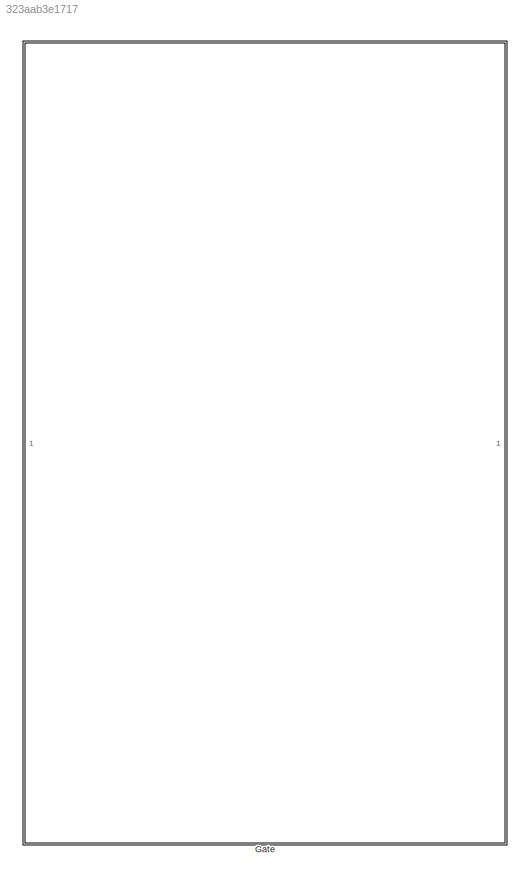
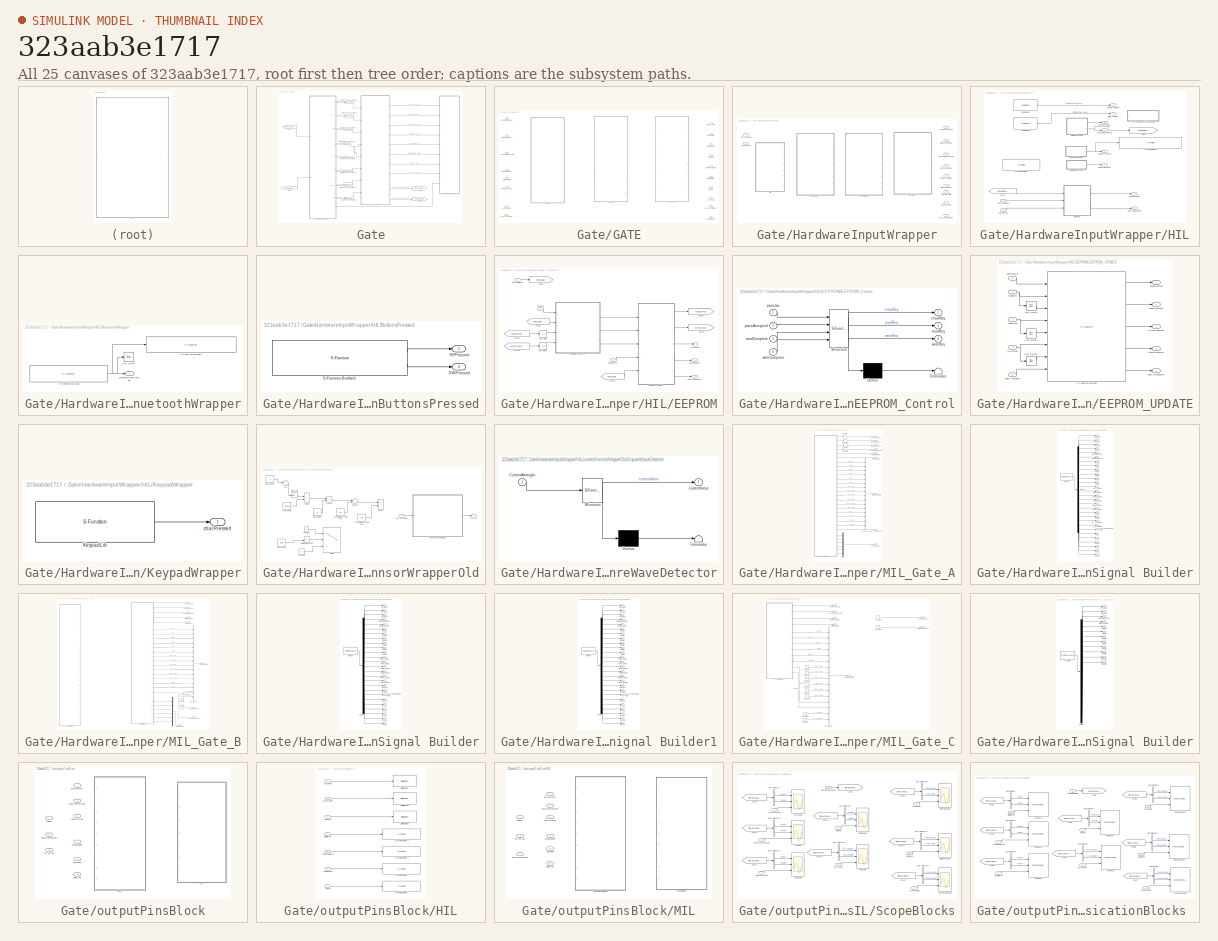
[diagram: thumbnail index - all 25 canvases of the model, root first then tree order]
MODEL slx_323aab3e1717
KIND model
CONFIG AbsTol = auto
CONFIG FixedStep = 0.001
CONFIG MaxStep = auto
CONFIG MinStep = auto
CONFIG RelTol = 1e-3
CONFIG SampleTimeConstraint = Unconstrained
CONFIG Solver = FixedStepDiscrete
CONFIG SolverMode = Auto
CONFIG SolverName = FixedStepDiscrete
CONFIG StartTime = 0.0
CONFIG StopTime = 120
BLOCK [SubSystem] Gate
  Ports = []
  RequestExecContextInheritance = off
  Variant = off
BLOCK [DataTypeConversion] Gate/Data Type Conversion
  OutDataTypeStr = boolean
  RndMeth = Floor
  SaturateOnIntegerOverflow = off
BLOCK [DataTypeConversion] Gate/Data Type Conversion1
  OutDataTypeStr = uint8
  RndMeth = Floor
  SaturateOnIntegerOverflow = off
BLOCK [DataTypeConversion] Gate/Data Type Conversion11
  OutDataTypeStr = boolean
  RndMeth = Floor
  SaturateOnIntegerOverflow = off
BLOCK [DataTypeConversion] Gate/Data Type Conversion2
  OutDataTypeStr = uint8
  RndMeth = Floor
  SaturateOnIntegerOverflow = off
BLOCK [DataTypeConversion] Gate/Data Type Conversion3
  OutDataTypeStr = uint16
  RndMeth = Floor
  SaturateOnIntegerOverflow = off
BLOCK [DataTypeConversion] Gate/Data Type Conversion4
  OutDataTypeStr = uint16
  RndMeth = Floor
  SaturateOnIntegerOverflow = off
BLOCK [DataTypeConversion] Gate/Data Type Conversion5
  OutDataTypeStr = uint8
  RndMeth = Floor
  SaturateOnIntegerOverflow = off
BLOCK [DataTypeConversion] Gate/Data Type Conversion6
  OutDataTypeStr = uint8
  RndMeth = Floor
  SaturateOnIntegerOverflow = off
BLOCK [From] Gate/From
  GotoTag = passwordOut
BLOCK [From] Gate/From1
  GotoTag = passAssigned
BLOCK [SubSystem] Gate/GATE
  OverrideUsingVariant = VariantB
  Ports = [8, 10]
  RequestExecContextInheritance = off
  Variant = on
  VariantControl = Variant1
BLOCK [Outport] Gate/GATE/ BT_TxChar
  IconDisplay = Port number
  Port = 8
BLOCK [Outport] Gate/GATE/ CommonMotorPin
  IconDisplay = Port number
  Port = 5
BLOCK [Outport] Gate/GATE/ LeftMotorPin
  IconDisplay = Port number
  Port = 4
BLOCK [Outport] Gate/GATE/ bulbPin
  IconDisplay = Port number
  Port = 7
BLOCK [Outport] Gate/GATE/ greenLedPin
  IconDisplay = Port number
BLOCK [Outport] Gate/GATE/ redLedPin
  IconDisplay = Port number
  Port = 2
BLOCK [Outport] Gate/GATE/ rightMotorPin
  IconDisplay = Port number
  Port = 6
BLOCK [Outport] Gate/GATE/ yellowLedPin
  IconDisplay = Port number
  Port = 3
BLOCK [Inport] Gate/GATE/BtCharReceived 
  IconDisplay = Port number
  Port = 8
BLOCK [ModelReference] Gate/GATE/GATE_A
  ModelNameDialog = GATE_A
  ModelReferenceVersion = 1.329
  Ports = [8, 10]
  Variant = off
  VariantControl = VariantA
BLOCK [ModelReference] Gate/GATE/GATE_B
  ModelNameDialog = GATE_B
  ModelReferenceVersion = 1.335
  Ports = [7, 10]
  Variant = off
  VariantControl = VariantB
BLOCK [ModelReference] Gate/GATE/GATE_C
  ModelNameDialog = GATE_C
  ModelReferenceVersion = 1.328
  Ports = [5, 8]
  Variant = off
  VariantControl = VariantC
BLOCK [Inport] Gate/GATE/KpCharPressed 
  IconDisplay = Port number
BLOCK [Inport] Gate/GATE/PassSwPressedOut 
  IconDisplay = Port number
  Port = 2
BLOCK [Inport] Gate/GATE/RFPressedOut
  IconDisplay = Port number
  Port = 4
BLOCK [Inport] Gate/GATE/leftCurrentRaw
  IconDisplay = Port number
  Port = 5
BLOCK [Outport] Gate/GATE/passAssigned
  IconDisplay = Port number
  Port = 9
BLOCK [Inport] Gate/GATE/passAssignedIn
  IconDisplay = Port number
  Port = 7
BLOCK [Inport] Gate/GATE/passwordIn
  IconDisplay = Port number
  Port = 6
BLOCK [Outport] Gate/GATE/passwordOut
  IconDisplay = Port number
  Port = 10
BLOCK [Inport] Gate/GATE/rightCurrentRaw
  IconDisplay = Port number
  Port = 3
BLOCK [Goto] Gate/Goto
  GotoTag = passAssigned
BLOCK [Goto] Gate/Goto1
  GotoTag = passwordOut
BLOCK [SubSystem] Gate/HardwareInputWrapper
  OverrideUsingVariant = MIL_VariantB
  Ports = [2, 9]
  RequestExecContextInheritance = off
  Variant = on
  VariantControl = Variant1
BLOCK [Outport] Gate/HardwareInputWrapper/BtCharReceived
  IconDisplay = Port number
  Port = 8
BLOCK [SubSystem] Gate/HardwareInputWrapper/HIL
  Ports = [2, 8]
  RequestExecContextInheritance = off
  Variant = off
  VariantControl = HardwareInloopInputs
BLOCK [Reference] Gate/HardwareInputWrapper/HIL/Analog Input  REF=arduinolib/Analog Input
  Ports = [0, 1]
  SourceBlock = arduinolib/Analog Input
  SourceType = Arduino Analog Input
BLOCK [Reference] Gate/HardwareInputWrapper/HIL/Analog Input1  REF=arduinolib/Analog Input
  Ports = [0, 1]
  SourceBlock = arduinolib/Analog Input
  SourceType = Arduino Analog Input
BLOCK [SubSystem] Gate/HardwareInputWrapper/HIL/BluetoothWrapper
  Commented = on
  Ports = [0, 1]
  RequestExecContextInheritance = off
  Variant = off
BLOCK [S-Function] Gate/HardwareInputWrapper/HIL/BluetoothWrapper/S-Function Builder
  CopyFcn = set_param(gcbh,'LinkStatus','none')
  EnableBusSupport = off
  FunctionName = BluetoothLib
  InitFcn = try, set_param(gcb,'FunctionName','BluetoothLib'), end
  OpenFcn = sfunctionwizard(gcbh)
  Ports = [0, 1]
  PreSaveFcn = try, set_param(gcb,'FunctionName','BluetoothLib'), end
  SFunctionDeploymentMode = off
  SFunctionModules = BluetoothLib_wrapper
BLOCK [S-Function] Gate/HardwareInputWrapper/HIL/BluetoothWrapper/S-Function Builder1
  Commented = on
  CopyFcn = set_param(gcbh,'LinkStatus','none')
  EnableBusSupport = off
  FunctionName = printingBlock
  InitFcn = try, set_param(gcb,'FunctionName','printingBlock'), end
  OpenFcn = sfunctionwizard(gcbh)
  Ports = [1, 1]
  PreSaveFcn = try, set_param(gcb,'FunctionName','printingBlock'), end
  SFunctionDeploymentMode = off
  SFunctionModules = printingBlock_wrapper
BLOCK [UnitDelay] Gate/HardwareInputWrapper/HIL/BluetoothWrapper/Unit Delay
  Commented = on
  InputProcessing = Elements as channels (sample based)
  SampleTime = -1
BLOCK [Outport] Gate/HardwareInputWrapper/HIL/BluetoothWrapper/bluetoothCharPressed
  IconDisplay = Port number
BLOCK [Outport] Gate/HardwareInputWrapper/HIL/BtCharReceived
  IconDisplay = Port number
  Port = 2
BLOCK [SubSystem] Gate/HardwareInputWrapper/HIL/ButtonsPressed
  Ports = [0, 2]
  RequestExecContextInheritance = off
  Variant = off
BLOCK [Outport] Gate/HardwareInputWrapper/HIL/ButtonsPressed/RFPressed
  IconDisplay = Port number
BLOCK [S-Function] Gate/HardwareInputWrapper/HIL/ButtonsPressed/S-Function Builder1
  CopyFcn = set_param(gcbh,'LinkStatus','none')
  EnableBusSupport = off
  FunctionName = Button_Lib
  InitFcn = try, set_param(gcb,'FunctionName','Button_Lib'), end
  OpenFcn = sfunctionwizard(gcbh)
  Ports = [0, 2]
  PreSaveFcn = try, set_param(gcb,'FunctionName','Button_Lib'), end
  SFunctionDeploymentMode = off
  SFunctionModules = Button_Lib_wrapper
BLOCK [Outport] Gate/HardwareInputWrapper/HIL/ButtonsPressed/SWPressed
  IconDisplay = Port number
  Port = 2
BLOCK [SubSystem] Gate/HardwareInputWrapper/HIL/EEPROM
  Ports = [3, 2]
  RequestExecContextInheritance = off
  Variant = off
BLOCK [SubSystem] Gate/HardwareInputWrapper/HIL/EEPROM/EEPROM_Control
  ErrorFcn = Stateflow.Translate.translate
  PermitHierarchicalResolution = ExplicitOnly
  Ports = [4, 3]
  RequestExecContextInheritance = off
  SFBlockType = Chart
  TreatAsAtomicUnit = on
  Variant = off
BLOCK [Demux] Gate/HardwareInputWrapper/HIL/EEPROM/EEPROM_Control/ Demux 
  Outputs = 1
  Ports = [1, 1]
BLOCK [S-Function] Gate/HardwareInputWrapper/HIL/EEPROM/EEPROM_Control/ SFunction 
  EnableBusSupport = on
  FunctionName = sf_sfun
  PortCounts = [4 4]
  Ports = [4, 4]
  SFunctionDeploymentMode = off
  Tag = Stateflow S-Function gate_V35_2016a_SIM 7
BLOCK [Terminator] Gate/HardwareInputWrapper/HIL/EEPROM/EEPROM_Control/ Terminator 
BLOCK [Outport] Gate/HardwareInputWrapper/HIL/EEPROM/EEPROM_Control/clearReq
  IconDisplay = Port number
BLOCK [Inport] Gate/HardwareInputWrapper/HIL/EEPROM/EEPROM_Control/passAssigned
  IconDisplay = Port number
  Port = 2
BLOCK [Inport] Gate/HardwareInputWrapper/HIL/EEPROM/EEPROM_Control/passSw
  IconDisplay = Port number
BLOCK [Inport] Gate/HardwareInputWrapper/HIL/EEPROM/EEPROM_Control/readComplete
  IconDisplay = Port number
  Port = 3
BLOCK [Outport] Gate/HardwareInputWrapper/HIL/EEPROM/EEPROM_Control/readReq
  IconDisplay = Port number
  Port = 2
BLOCK [Inport] Gate/HardwareInputWrapper/HIL/EEPROM/EEPROM_Control/writeComplete
  IconDisplay = Port number
  Port = 4
BLOCK [Outport] Gate/HardwareInputWrapper/HIL/EEPROM/EEPROM_Control/writeReq
  IconDisplay = Port number
  Port = 3
BLOCK [SubSystem] Gate/HardwareInputWrapper/HIL/EEPROM/EEPROM_UPDATE
  Ports = [5, 5]
  RequestExecContextInheritance = off
  TreatAsAtomicUnit = on
  Variant = off
BLOCK [S-Function] Gate/HardwareInputWrapper/HIL/EEPROM/EEPROM_UPDATE/S-Function Builder
  CopyFcn = set_param(gcbh,'LinkStatus','none')
  EnableBusSupport = off
  FunctionName = myEEPROM_Handler
  InitFcn = try, set_param(gcb,'FunctionName','myEEPROM_Handler'), end
  OpenFcn = sfunctionwizard(gcbh)
  Ports = [8, 5]
  PreSaveFcn = try, set_param(gcb,'FunctionName','myEEPROM_Handler'), end
  SFunctionDeploymentMode = off
  SFunctionModules = myEEPROM_Handler_wrapper
BLOCK [UnitDelay] Gate/HardwareInputWrapper/HIL/EEPROM/EEPROM_UPDATE/Unit Delay
  SampleTime = -1
BLOCK [UnitDelay] Gate/HardwareInputWrapper/HIL/EEPROM/EEPROM_UPDATE/Unit Delay1
  SampleTime = -1
BLOCK [UnitDelay] Gate/HardwareInputWrapper/HIL/EEPROM/EEPROM_UPDATE/Unit Delay2
  SampleTime = -1
BLOCK [Outport] Gate/HardwareInputWrapper/HIL/EEPROM/EEPROM_UPDATE/clearComplete
  IconDisplay = Port number
  Port = 3
BLOCK [Inport] Gate/HardwareInputWrapper/HIL/EEPROM/EEPROM_UPDATE/clearReq
  IconDisplay = Port number
BLOCK [Inport] Gate/HardwareInputWrapper/HIL/EEPROM/EEPROM_UPDATE/passAssignedIn
  IconDisplay = Port number
  Port = 5
BLOCK [Outport] Gate/HardwareInputWrapper/HIL/EEPROM/EEPROM_UPDATE/passAssignedOut
  IconDisplay = Port number
  Port = 5
BLOCK [Inport] Gate/HardwareInputWrapper/HIL/EEPROM/EEPROM_UPDATE/passwordIn
  IconDisplay = Port number
  Port = 4
BLOCK [Outport] Gate/HardwareInputWrapper/HIL/EEPROM/EEPROM_UPDATE/passwordOut
  IconDisplay = Port number
  Port = 4
BLOCK [Outport] Gate/HardwareInputWrapper/HIL/EEPROM/EEPROM_UPDATE/readComplete
  IconDisplay = Port number
BLOCK [Inport] Gate/HardwareInputWrapper/HIL/EEPROM/EEPROM_UPDATE/readReq
  IconDisplay = Port number
  Port = 2
BLOCK [Outport] Gate/HardwareInputWrapper/HIL/EEPROM/EEPROM_UPDATE/writeComplete
  IconDisplay = Port number
  Port = 2
BLOCK [Inport] Gate/HardwareInputWrapper/HIL/EEPROM/EEPROM_UPDATE/writeReq
  IconDisplay = Port number
  Port = 3
BLOCK [From] Gate/HardwareInputWrapper/HIL/EEPROM/From
  GotoTag = passAssigned
BLOCK [From] Gate/HardwareInputWrapper/HIL/EEPROM/From1
  GotoTag = passAssigned
BLOCK [From] Gate/HardwareInputWrapper/HIL/EEPROM/From2
  GotoTag = readComplete
BLOCK [From] Gate/HardwareInputWrapper/HIL/EEPROM/From3
  GotoTag = writeComplete
BLOCK [Goto] Gate/HardwareInputWrapper/HIL/EEPROM/Goto
  GotoTag = passAssigned
BLOCK [Goto] Gate/HardwareInputWrapper/HIL/EEPROM/Goto1
  GotoTag = readComplete
BLOCK [Goto] Gate/HardwareInputWrapper/HIL/EEPROM/Goto2
  GotoTag = writeComplete
BLOCK [Terminator] Gate/HardwareInputWrapper/HIL/EEPROM/Terminator
BLOCK [UnitDelay] Gate/HardwareInputWrapper/HIL/EEPROM/Unit Delay
  InputProcessing = Elements as channels (sample based)
  SampleTime = -1
BLOCK [UnitDelay] Gate/HardwareInputWrapper/HIL/EEPROM/Unit Delay1
  InputProcessing = Elements as channels (sample based)
  SampleTime = -1
BLOCK [Inport] Gate/HardwareInputWrapper/HIL/EEPROM/passAssigned
  IconDisplay = Port number
  Port = 2
BLOCK [Outport] Gate/HardwareInputWrapper/HIL/EEPROM/passAssignedOut
  IconDisplay = Port number
  Port = 2
BLOCK [Inport] Gate/HardwareInputWrapper/HIL/EEPROM/passSw
  IconDisplay = Port number
BLOCK [Inport] Gate/HardwareInputWrapper/HIL/EEPROM/passwordIn
  IconDisplay = Port number
  Port = 3
BLOCK [Outport] Gate/HardwareInputWrapper/HIL/EEPROM/passwordOut
  IconDisplay = Port number
BLOCK [From] Gate/HardwareInputWrapper/HIL/From
  GotoTag = PassSwPressedOut
BLOCK [Goto] Gate/HardwareInputWrapper/HIL/Goto1
  GotoTag = PassSwPressedOut
BLOCK [SubSystem] Gate/HardwareInputWrapper/HIL/KeypadWrapper
  Ports = [0, 1]
  RequestExecContextInheritance = off
  Variant = off
BLOCK [S-Function] Gate/HardwareInputWrapper/HIL/KeypadWrapper/KeypadLib
  CopyFcn = set_param(gcbh,'LinkStatus','none')
  EnableBusSupport = off
  FunctionName = keypadLib
  InitFcn = try, set_param(gcb,'FunctionName','keypadLib'), end
  OpenFcn = sfunctionwizard(gcbh)
  Ports = [0, 1]
  PreSaveFcn = try, set_param(gcb,'FunctionName','keypadLib'), end
  SFunctionDeploymentMode = off
  SFunctionModules = keypadLib_wrapper
BLOCK [Outport] Gate/HardwareInputWrapper/HIL/KeypadWrapper/charPressed
  IconDisplay = Port number
BLOCK [Outport] Gate/HardwareInputWrapper/HIL/KpCharPressed
  IconDisplay = Port number
BLOCK [Outport] Gate/HardwareInputWrapper/HIL/PassSwPressedOut
  IconDisplay = Port number
  Port = 3
BLOCK [Outport] Gate/HardwareInputWrapper/HIL/RFPressedOut
  IconDisplay = Port number
  Port = 6
BLOCK [S-Function] Gate/HardwareInputWrapper/HIL/S-Function Builder1
  Commented = on
  CopyFcn = set_param(gcbh,'LinkStatus','none')
  EnableBusSupport = off
  FunctionName = CurrentA_Lib
  InitFcn = try, set_param(gcb,'FunctionName','CurrentA_Lib'), end
  OpenFcn = sfunctionwizard(gcbh)
  Ports = [0, 1]
  PreSaveFcn = try, set_param(gcb,'FunctionName','CurrentA_Lib'), end
  SFunctionDeploymentMode = off
  SFunctionModules = CurrentA_Lib_wrapper
BLOCK [S-Function] Gate/HardwareInputWrapper/HIL/S-Function Builder2
  Commented = on
  CopyFcn = set_param(gcbh,'LinkStatus','none')
  EnableBusSupport = off
  FunctionName = printingBlock
  InitFcn = try, set_param(gcb,'FunctionName','printingBlock'), end
  OpenFcn = sfunctionwizard(gcbh)
  Ports = [1, 1]
  PreSaveFcn = try, set_param(gcb,'FunctionName','printingBlock'), end
  SFunctionDeploymentMode = off
  SFunctionModules = printingBlock_wrapper
BLOCK [SubSystem] Gate/HardwareInputWrapper/HIL/currentSensorWrapperOld
  Commented = on
  Ports = [1, 1]
  RequestExecContextInheritance = off
  Variant = off
BLOCK [Sum] Gate/HardwareInputWrapper/HIL/currentSensorWrapperOld/Add
  Commented = on
  InputSameDT = off
  OutDataTypeStr = Inherit: Inherit via internal rule
  Ports = [2, 1]
  SaturateOnIntegerOverflow = off
BLOCK [Constant] Gate/HardwareInputWrapper/HIL/currentSensorWrapperOld/Constant
  Commented = on
  Value = 0
BLOCK [Constant] Gate/HardwareInputWrapper/HIL/currentSensorWrapperOld/Constant1
  Commented = on
BLOCK [Inport] Gate/HardwareInputWrapper/HIL/currentSensorWrapperOld/CurrentAnalogIn
  IconDisplay = Port number
BLOCK [Product] Gate/HardwareInputWrapper/HIL/currentSensorWrapperOld/Divide
  Commented = on
  InputSameDT = off
  Inputs = */
  OutDataTypeStr = Inherit: Inherit via internal rule
  Ports = [2, 1]
  RndMeth = Floor
  SaturateOnIntegerOverflow = off
BLOCK [Product] Gate/HardwareInputWrapper/HIL/currentSensorWrapperOld/Divide1
  Commented = on
  InputSameDT = off
  Inputs = */
  OutDataTypeStr = Inherit: Inherit via internal rule
  Ports = [2, 1]
  RndMeth = Floor
  SaturateOnIntegerOverflow = off
BLOCK [Constant] Gate/HardwareInputWrapper/HIL/currentSensorWrapperOld/MaxAnalog
  Commented = on
  Value = 65535
BLOCK [Constant] Gate/HardwareInputWrapper/HIL/currentSensorWrapperOld/MaxAnalog1
  Commented = on
BLOCK [Constant] Gate/HardwareInputWrapper/HIL/currentSensorWrapperOld/MaxAnalog2
  Commented = on
  Value = 600
BLOCK [Constant] Gate/HardwareInputWrapper/HIL/currentSensorWrapperOld/MaxVoltage
  Commented = on
  Value = 5
BLOCK [Product] Gate/HardwareInputWrapper/HIL/currentSensorWrapperOld/Product
  Commented = on
  InputSameDT = off
  OutDataTypeStr = Inherit: Inherit via internal rule
  Ports = [2, 1]
  RndMeth = Floor
  SaturateOnIntegerOverflow = off
BLOCK [RelationalOperator] Gate/HardwareInputWrapper/HIL/currentSensorWrapperOld/Relational Operator
  Commented = on
  InputSameDT = off
  Operator = <=
  OutDataTypeStr = boolean
  Ports = [2, 1]
BLOCK [Reference] Gate/HardwareInputWrapper/HIL/currentSensorWrapperOld/Slider Gain  REF=simulink/Math
Operations/Slider
Gain
  Commented = on
  Ports = [1, 1]
  SourceBlock = simulink/Math\nOperations/Slider\nGain
  SourceType = Slider Gain
BLOCK [SubSystem] Gate/HardwareInputWrapper/HIL/currentSensorWrapperOld/SquareWaveDetector
  ErrorFcn = Stateflow.Translate.translate
  PermitHierarchicalResolution = ExplicitOnly
  Ports = [1, 1]
  RequestExecContextInheritance = off
  SFBlockType = Chart
  TreatAsAtomicUnit = on
  Variant = off
BLOCK [Demux] Gate/HardwareInputWrapper/HIL/currentSensorWrapperOld/SquareWaveDetector/ Demux 
  Outputs = 1
  Ports = [1, 1]
BLOCK [S-Function] Gate/HardwareInputWrapper/HIL/currentSensorWrapperOld/SquareWaveDetector/ SFunction 
  EnableBusSupport = on
  FunctionName = sf_sfun
  PortCounts = [1 2]
  Ports = [1, 2]
  SFunctionDeploymentMode = off
  Tag = Stateflow S-Function gate_V35_2016a_SIM 11
BLOCK [Terminator] Gate/HardwareInputWrapper/HIL/currentSensorWrapperOld/SquareWaveDetector/ Terminator 
BLOCK [Inport] Gate/HardwareInputWrapper/HIL/currentSensorWrapperOld/SquareWaveDetector/CurrentAnalogIn
  IconDisplay = Port number
BLOCK [Outport] Gate/HardwareInputWrapper/HIL/currentSensorWrapperOld/SquareWaveDetector/currentValue
  IconDisplay = Port number
BLOCK [Sum] Gate/HardwareInputWrapper/HIL/currentSensorWrapperOld/Subtract
  Commented = on
  InputSameDT = off
  Inputs = +-
  OutDataTypeStr = Inherit: Inherit via internal rule
  Ports = [2, 1]
  SaturateOnIntegerOverflow = off
BLOCK [Switch] Gate/HardwareInputWrapper/HIL/currentSensorWrapperOld/Switch
  Commented = on
  Criteria = u2 > Threshold
  InputSameDT = off
  SaturateOnIntegerOverflow = off
BLOCK [Constant] Gate/HardwareInputWrapper/HIL/currentSensorWrapperOld/constantInCurrentEqua
  Commented = on
  Value = 2.5
BLOCK [Constant] Gate/HardwareInputWrapper/HIL/currentSensorWrapperOld/constantInCurrentEqua1
  Commented = on
  Value = 0.2
BLOCK [Outport] Gate/HardwareInputWrapper/HIL/currentSensorWrapperOld/current
  IconDisplay = Port number
BLOCK [Outport] Gate/HardwareInputWrapper/HIL/leftCurrentRaw
  IconDisplay = Port number
  Port = 5
BLOCK [Inport] Gate/HardwareInputWrapper/HIL/passAssigned
  IconDisplay = Port number
BLOCK [Outport] Gate/HardwareInputWrapper/HIL/passAssignedOut
  IconDisplay = Port number
  Port = 8
BLOCK [Inport] Gate/HardwareInputWrapper/HIL/passwordIn
  IconDisplay = Port number
  Port = 2
BLOCK [Outport] Gate/HardwareInputWrapper/HIL/passwordOut
  IconDisplay = Port number
  Port = 7
BLOCK [Outport] Gate/HardwareInputWrapper/HIL/rightCurrentRaw
  IconDisplay = Port number
  Port = 4
BLOCK [Outport] Gate/HardwareInputWrapper/KpCharPressed
  IconDisplay = Port number
BLOCK [SubSystem] Gate/HardwareInputWrapper/MIL_Gate_A
  Ports = [0, 9]
  RequestExecContextInheritance = off
  Variant = off
  VariantControl = MIL_VariantA
BLOCK [Outport] Gate/HardwareInputWrapper/MIL_Gate_A/BtCharReceived
  IconDisplay = Port number
  Port = 2
BLOCK [BusCreator] Gate/HardwareInputWrapper/MIL_Gate_A/Bus Creator
  DisplayOption = bar
  InheritFromInputs = on
  Inputs = 16
  Ports = [16, 1]
BLOCK [Outport] Gate/HardwareInputWrapper/MIL_Gate_A/KpCharPressed
  IconDisplay = Port number
BLOCK [Mux] Gate/HardwareInputWrapper/MIL_Gate_A/Mux
  DisplayOption = bar
  Inputs = 6
  Ports = [6, 1]
BLOCK [Outport] Gate/HardwareInputWrapper/MIL_Gate_A/PassSwPressedOut
  IconDisplay = Port number
  Port = 3
BLOCK [Quantizer] Gate/HardwareInputWrapper/MIL_Gate_A/Quantizer
  QuantizationInterval = -1
BLOCK [Quantizer] Gate/HardwareInputWrapper/MIL_Gate_A/Quantizer1
  QuantizationInterval = -1
BLOCK [Quantizer] Gate/HardwareInputWrapper/MIL_Gate_A/Quantizer2
  QuantizationInterval = -1
BLOCK [Quantizer] Gate/HardwareInputWrapper/MIL_Gate_A/Quantizer3
  QuantizationInterval = -1
BLOCK [Outport] Gate/HardwareInputWrapper/MIL_Gate_A/RFPressedOut
  IconDisplay = Port number
  Port = 4
BLOCK [SubSystem] Gate/HardwareInputWrapper/MIL_Gate_A/Signal Builder
  ClipboardFcn = sigbuilder_block('clipboard');
  CloseFcn = sigbuilder_block('close');
  ContinueFcn = sigbuilder_block('continue');
  CopyFcn = sigbuilder_block('copy');
  DeleteFcn = sigbuilder_block('delete');
  LoadFcn = sigbuilder_block('load');
  MaskHideContents = on
  ModelCloseFcn = sigbuilder_block('modelClose');
  NameChangeFcn = sigbuilder_block('namechange');
  OpenFcn = sigbuilder_block('open',[6 28.2 1012.8 484.8 ]);
  PauseFcn = sigbuilder_block('pause');
  Ports = [0, 29]
  PreSaveFcn = sigbuilder_block('preSave');
  RequestExecContextInheritance = off
  StartFcn = sigbuilder_block('start');
  StopFcn = sigbuilder_block('stop');
  Tag = STV Subsys
  Variant = off
BLOCK [Outport] Gate/HardwareInputWrapper/MIL_Gate_A/Signal Builder/BT_input
  IconDisplay = Port number
  Port = 2
  Tag = STV Outport
BLOCK [Outport] Gate/HardwareInputWrapper/MIL_Gate_A/Signal Builder/BT_ouputMax
  IconDisplay = Port number
  Port = 21
  Tag = STV Outport
BLOCK [Outport] Gate/HardwareInputWrapper/MIL_Gate_A/Signal Builder/BT_outputMin
  IconDisplay = Port number
  Port = 22
  Tag = STV Outport
BLOCK [Outport] Gate/HardwareInputWrapper/MIL_Gate_A/Signal Builder/BulbMax
  IconDisplay = Port number
  Port = 19
  Tag = STV Outport
BLOCK [Outport] Gate/HardwareInputWrapper/MIL_Gate_A/Signal Builder/BulbMin
  IconDisplay = Port number
  Port = 20
  Tag = STV Outport
BLOCK [Demux] Gate/HardwareInputWrapper/MIL_Gate_A/Signal Builder/Demux
  Outputs = 29
  Ports = [1, 29]
  Tag = STV Demux
BLOCK [FromWorkspace] Gate/HardwareInputWrapper/MIL_Gate_A/Signal Builder/FromWs
  SampleTime = 0
  Tag = STV FromWs
  VariableName = tuvar
  ZeroCross = on
BLOCK [Outport] Gate/HardwareInputWrapper/MIL_Gate_A/Signal Builder/GreenLedMax
  IconDisplay = Port number
  Port = 17
  Tag = STV Outport
BLOCK [Outport] Gate/HardwareInputWrapper/MIL_Gate_A/Signal Builder/GreenLedMin
  IconDisplay = Port number
  Port = 18
  Tag = STV Outport
BLOCK [Outport] Gate/HardwareInputWrapper/MIL_Gate_A/Signal Builder/Kp_input
  IconDisplay = Port number
  Tag = STV Outport
BLOCK [Outport] Gate/HardwareInputWrapper/MIL_Gate_A/Signal Builder/MCMax
  IconDisplay = Port number
  Port = 11
  Tag = STV Outport
BLOCK [Outport] Gate/HardwareInputWrapper/MIL_Gate_A/Signal Builder/MCMin
  IconDisplay = Port number
  Port = 12
  Tag = STV Outport
BLOCK [Outport] Gate/HardwareInputWrapper/MIL_Gate_A/Signal Builder/MLMax
  IconDisplay = Port number
  Port = 7
  Tag = STV Outport
BLOCK [Outport] Gate/HardwareInputWrapper/MIL_Gate_A/Signal Builder/MLMin
  IconDisplay = Port number
  Port = 8
  Tag = STV Outport
BLOCK [Outport] Gate/HardwareInputWrapper/MIL_Gate_A/Signal Builder/MRMax
  IconDisplay = Port number
  Port = 9
  Tag = STV Outport
BLOCK [Outport] Gate/HardwareInputWrapper/MIL_Gate_A/Signal Builder/MRMin
  IconDisplay = Port number
  Port = 10
  Tag = STV Outport
BLOCK [Outport] Gate/HardwareInputWrapper/MIL_Gate_A/Signal Builder/Pass1
  IconDisplay = Port number
  Port = 24
  Tag = STV Outport
BLOCK [Outport] Gate/HardwareInputWrapper/MIL_Gate_A/Signal Builder/Pass2
  IconDisplay = Port number
  Port = 25
  Tag = STV Outport
BLOCK [Outport] Gate/HardwareInputWrapper/MIL_Gate_A/Signal Builder/Pass3
  IconDisplay = Port number
  Port = 26
  Tag = STV Outport
BLOCK [Outport] Gate/HardwareInputWrapper/MIL_Gate_A/Signal Builder/Pass4
  IconDisplay = Port number
  Port = 27
  Tag = STV Outport
BLOCK [Outport] Gate/HardwareInputWrapper/MIL_Gate_A/Signal Builder/Pass5
  IconDisplay = Port number
  Port = 28
  Tag = STV Outport
BLOCK [Outport] Gate/HardwareInputWrapper/MIL_Gate_A/Signal Builder/Pass6
  IconDisplay = Port number
  Port = 29
  Tag = STV Outport
BLOCK [Outport] Gate/HardwareInputWrapper/MIL_Gate_A/Signal Builder/PassAssignedEEPROM
  IconDisplay = Port number
  Port = 23
  Tag = STV Outport
BLOCK [Outport] Gate/HardwareInputWrapper/MIL_Gate_A/Signal Builder/RF_input
  IconDisplay = Port number
  Port = 3
  Tag = STV Outport
BLOCK [Outport] Gate/HardwareInputWrapper/MIL_Gate_A/Signal Builder/RedLedMax
  IconDisplay = Port number
  Port = 13
  Tag = STV Outport
BLOCK [Outport] Gate/HardwareInputWrapper/MIL_Gate_A/Signal Builder/RedLedMin
  IconDisplay = Port number
  Port = 14
  Tag = STV Outport
BLOCK [Outport] Gate/HardwareInputWrapper/MIL_Gate_A/Signal Builder/SW_input
  IconDisplay = Port number
  Port = 4
  Tag = STV Outport
BLOCK [Outport] Gate/HardwareInputWrapper/MIL_Gate_A/Signal Builder/YellowLedMax
  IconDisplay = Port number
  Port = 15
  Tag = STV Outport
BLOCK [Outport] Gate/HardwareInputWrapper/MIL_Gate_A/Signal Builder/YellowLedMin
  IconDisplay = Port number
  Port = 16
  Tag = STV Outport
BLOCK [Outport] Gate/HardwareInputWrapper/MIL_Gate_A/Signal Builder/leftSpeedRaw
  IconDisplay = Port number
  Port = 6
  Tag = STV Outport
BLOCK [Outport] Gate/HardwareInputWrapper/MIL_Gate_A/Signal Builder/rightSpeedRaw
  IconDisplay = Port number
  Port = 5
  Tag = STV Outport
BLOCK [Outport] Gate/HardwareInputWrapper/MIL_Gate_A/SimuOutputLimits
  IconDisplay = Port number
  Port = 7
BLOCK [Outport] Gate/HardwareInputWrapper/MIL_Gate_A/leftCurrentRaw
  IconDisplay = Port number
  Port = 6
BLOCK [Outport] Gate/HardwareInputWrapper/MIL_Gate_A/passAssignedOut
  IconDisplay = Port number
  Port = 9
BLOCK [Outport] Gate/HardwareInputWrapper/MIL_Gate_A/passwordOut
  IconDisplay = Port number
  Port = 8
BLOCK [Outport] Gate/HardwareInputWrapper/MIL_Gate_A/rightCurrentRaw
  IconDisplay = Port number
  Port = 5
BLOCK [SubSystem] Gate/HardwareInputWrapper/MIL_Gate_B
  Ports = [0, 9]
  RequestExecContextInheritance = off
  Variant = off
  VariantControl = MIL_VariantB
BLOCK [Outport] Gate/HardwareInputWrapper/MIL_Gate_B/BtCharReceived
  IconDisplay = Port number
  Port = 7
BLOCK [BusCreator] Gate/HardwareInputWrapper/MIL_Gate_B/Bus Creator
  DisplayOption = bar
  InheritFromInputs = on
  Inputs = 16
  Ports = [16, 1]
BLOCK [Constant] Gate/HardwareInputWrapper/MIL_Gate_B/Constant
BLOCK [Constant] Gate/HardwareInputWrapper/MIL_Gate_B/Constant1
  Value = -1
BLOCK [Constant] Gate/HardwareInputWrapper/MIL_Gate_B/Constant2
  Value = 0
BLOCK [Outport] Gate/HardwareInputWrapper/MIL_Gate_B/KpCharPressed
  IconDisplay = Port number
BLOCK [Mux] Gate/HardwareInputWrapper/MIL_Gate_B/Mux
  DisplayOption = bar
  Inputs = 6
  Ports = [6, 1]
BLOCK [Outport] Gate/HardwareInputWrapper/MIL_Gate_B/PassSwPressedOut
  IconDisplay = Port number
  Port = 2
BLOCK [Outport] Gate/HardwareInputWrapper/MIL_Gate_B/RFPressedOut
  IconDisplay = Port number
  Port = 3
BLOCK [SubSystem] Gate/HardwareInputWrapper/MIL_Gate_B/Signal Builder
  ClipboardFcn = sigbuilder_block('clipboard');
  CloseFcn = sigbuilder_block('close');
  ContinueFcn = sigbuilder_block('continue');
  CopyFcn = sigbuilder_block('copy');
  DeleteFcn = sigbuilder_block('delete');
  LoadFcn = sigbuilder_block('load',[-1152 -69.6 1152 592.8 ]);
  MaskHideContents = on
  ModelCloseFcn = sigbuilder_block('modelClose');
  NameChangeFcn = sigbuilder_block('namechange');
  OpenFcn = sigbuilder_block('open',[-1161 42 1012.8 468 ]);
  PauseFcn = sigbuilder_block('pause');
  Ports = [0, 26]
  PreSaveFcn = sigbuilder_block('preSave');
  RequestExecContextInheritance = off
  StartFcn = sigbuilder_block('start');
  StopFcn = sigbuilder_block('stop');
  Tag = STV Subsys
  Variant = off
BLOCK [Outport] Gate/HardwareInputWrapper/MIL_Gate_B/Signal Builder/BulbMax
  IconDisplay = Port number
  Port = 18
  Tag = STV Outport
BLOCK [Outport] Gate/HardwareInputWrapper/MIL_Gate_B/Signal Builder/BulbMin
  IconDisplay = Port number
  Port = 19
  Tag = STV Outport
BLOCK [Demux] Gate/HardwareInputWrapper/MIL_Gate_B/Signal Builder/Demux
  Outputs = 26
  Ports = [1, 26]
  Tag = STV Demux
BLOCK [FromWorkspace] Gate/HardwareInputWrapper/MIL_Gate_B/Signal Builder/FromWs
  OutputAfterFinalValue = Holding final value
  SampleTime = 0
  Tag = STV FromWs
  VariableName = tuvar
  ZeroCross = on
BLOCK [Outport] Gate/HardwareInputWrapper/MIL_Gate_B/Signal Builder/GreenLedMax
  IconDisplay = Port number
  Port = 16
  Tag = STV Outport
BLOCK [Outport] Gate/HardwareInputWrapper/MIL_Gate_B/Signal Builder/GreenLedMin
  IconDisplay = Port number
  Port = 17
  Tag = STV Outport
BLOCK [Outport] Gate/HardwareInputWrapper/MIL_Gate_B/Signal Builder/Kp_input
  IconDisplay = Port number
  Tag = STV Outport
BLOCK [Outport] Gate/HardwareInputWrapper/MIL_Gate_B/Signal Builder/MCMax
  IconDisplay = Port number
  Port = 10
  Tag = STV Outport
BLOCK [Outport] Gate/HardwareInputWrapper/MIL_Gate_B/Signal Builder/MCMin
  IconDisplay = Port number
  Port = 11
  Tag = STV Outport
BLOCK [Outport] Gate/HardwareInputWrapper/MIL_Gate_B/Signal Builder/MLMax
  IconDisplay = Port number
  Port = 6
  Tag = STV Outport
BLOCK [Outport] Gate/HardwareInputWrapper/MIL_Gate_B/Signal Builder/MLMin
  IconDisplay = Port number
  Port = 7
  Tag = STV Outport
BLOCK [Outport] Gate/HardwareInputWrapper/MIL_Gate_B/Signal Builder/MRMax
  IconDisplay = Port number
  Port = 8
  Tag = STV Outport
BLOCK [Outport] Gate/HardwareInputWrapper/MIL_Gate_B/Signal Builder/MRMin
  IconDisplay = Port number
  Port = 9
  Tag = STV Outport
BLOCK [Outport] Gate/HardwareInputWrapper/MIL_Gate_B/Signal Builder/Pass1
  IconDisplay = Port number
  Port = 21
  Tag = STV Outport
BLOCK [Outport] Gate/HardwareInputWrapper/MIL_Gate_B/Signal Builder/Pass2
  IconDisplay = Port number
  Port = 22
  Tag = STV Outport
BLOCK [Outport] Gate/HardwareInputWrapper/MIL_Gate_B/Signal Builder/Pass3
  IconDisplay = Port number
  Port = 23
  Tag = STV Outport
BLOCK [Outport] Gate/HardwareInputWrapper/MIL_Gate_B/Signal Builder/Pass4
  IconDisplay = Port number
  Port = 24
  Tag = STV Outport
BLOCK [Outport] Gate/HardwareInputWrapper/MIL_Gate_B/Signal Builder/Pass5
  IconDisplay = Port number
  Port = 25
  Tag = STV Outport
BLOCK [Outport] Gate/HardwareInputWrapper/MIL_Gate_B/Signal Builder/Pass6
  IconDisplay = Port number
  Port = 26
  Tag = STV Outport
BLOCK [Outport] Gate/HardwareInputWrapper/MIL_Gate_B/Signal Builder/PassAssignedEEPROM
  IconDisplay = Port number
  Port = 20
  Tag = STV Outport
BLOCK [Outport] Gate/HardwareInputWrapper/MIL_Gate_B/Signal Builder/RF_input
  IconDisplay = Port number
  Port = 2
  Tag = STV Outport
BLOCK [Outport] Gate/HardwareInputWrapper/MIL_Gate_B/Signal Builder/RedLedMax
  IconDisplay = Port number
  Port = 12
  Tag = STV Outport
BLOCK [Outport] Gate/HardwareInputWrapper/MIL_Gate_B/Signal Builder/RedLedMin
  IconDisplay = Port number
  Port = 13
  Tag = STV Outport
BLOCK [Outport] Gate/HardwareInputWrapper/MIL_Gate_B/Signal Builder/SW_input
  IconDisplay = Port number
  Port = 3
  Tag = STV Outport
BLOCK [Outport] Gate/HardwareInputWrapper/MIL_Gate_B/Signal Builder/YellowLedMax
  IconDisplay = Port number
  Port = 14
  Tag = STV Outport
BLOCK [Outport] Gate/HardwareInputWrapper/MIL_Gate_B/Signal Builder/YellowLedMin
  IconDisplay = Port number
  Port = 15
  Tag = STV Outport
BLOCK [Outport] Gate/HardwareInputWrapper/MIL_Gate_B/Signal Builder/leftSpeedRaw
  IconDisplay = Port number
  Port = 5
  Tag = STV Outport
BLOCK [Outport] Gate/HardwareInputWrapper/MIL_Gate_B/Signal Builder/rightSpeedRaw
  IconDisplay = Port number
  Port = 4
  Tag = STV Outport
BLOCK [SubSystem] Gate/HardwareInputWrapper/MIL_Gate_B/Signal Builder1
  ClipboardFcn = sigbuilder_block('clipboard');
  CloseFcn = sigbuilder_block('close');
  Commented = on
  ContinueFcn = sigbuilder_block('continue');
  CopyFcn = sigbuilder_block('copy');
  DeleteFcn = sigbuilder_block('delete');
  LoadFcn = sigbuilder_block('load');
  MaskHideContents = on
  ModelCloseFcn = sigbuilder_block('modelClose');
  NameChangeFcn = sigbuilder_block('namechange');
  OpenFcn = sigbuilder_block('open',[-1139.4 30 1012.8 507 ]);
  PauseFcn = sigbuilder_block('pause');
  Ports = [0, 26]
  PreSaveFcn = sigbuilder_block('preSave');
  RequestExecContextInheritance = off
  StartFcn = sigbuilder_block('start');
  StopFcn = sigbuilder_block('stop');
  Tag = STV Subsys
  Variant = off
BLOCK [Outport] Gate/HardwareInputWrapper/MIL_Gate_B/Signal Builder1/BulbMax
  IconDisplay = Port number
  Port = 18
  Tag = STV Outport
BLOCK [Outport] Gate/HardwareInputWrapper/MIL_Gate_B/Signal Builder1/BulbMin
  IconDisplay = Port number
  Port = 19
  Tag = STV Outport
BLOCK [Demux] Gate/HardwareInputWrapper/MIL_Gate_B/Signal Builder1/Demux
  Outputs = 26
  Ports = [1, 26]
  Tag = STV Demux
BLOCK [FromWorkspace] Gate/HardwareInputWrapper/MIL_Gate_B/Signal Builder1/FromWs
  OutputAfterFinalValue = Holding final value
  SampleTime = 0
  Tag = STV FromWs
  VariableName = tuvar
  ZeroCross = on
BLOCK [Outport] Gate/HardwareInputWrapper/MIL_Gate_B/Signal Builder1/GreenLedMax
  IconDisplay = Port number
  Port = 16
  Tag = STV Outport
BLOCK [Outport] Gate/HardwareInputWrapper/MIL_Gate_B/Signal Builder1/GreenLedMin
  IconDisplay = Port number
  Port = 17
  Tag = STV Outport
BLOCK [Outport] Gate/HardwareInputWrapper/MIL_Gate_B/Signal Builder1/Kp_input
  IconDisplay = Port number
  Tag = STV Outport
BLOCK [Outport] Gate/HardwareInputWrapper/MIL_Gate_B/Signal Builder1/MCMax
  IconDisplay = Port number
  Port = 10
  Tag = STV Outport
BLOCK [Outport] Gate/HardwareInputWrapper/MIL_Gate_B/Signal Builder1/MCMin
  IconDisplay = Port number
  Port = 11
  Tag = STV Outport
BLOCK [Outport] Gate/HardwareInputWrapper/MIL_Gate_B/Signal Builder1/MLMax
  IconDisplay = Port number
  Port = 6
  Tag = STV Outport
BLOCK [Outport] Gate/HardwareInputWrapper/MIL_Gate_B/Signal Builder1/MLMin
  IconDisplay = Port number
  Port = 7
  Tag = STV Outport
BLOCK [Outport] Gate/HardwareInputWrapper/MIL_Gate_B/Signal Builder1/MRMax
  IconDisplay = Port number
  Port = 8
  Tag = STV Outport
BLOCK [Outport] Gate/HardwareInputWrapper/MIL_Gate_B/Signal Builder1/MRMin
  IconDisplay = Port number
  Port = 9
  Tag = STV Outport
BLOCK [Outport] Gate/HardwareInputWrapper/MIL_Gate_B/Signal Builder1/Pass1
  IconDisplay = Port number
  Port = 21
  Tag = STV Outport
BLOCK [Outport] Gate/HardwareInputWrapper/MIL_Gate_B/Signal Builder1/Pass2
  IconDisplay = Port number
  Port = 22
  Tag = STV Outport
BLOCK [Outport] Gate/HardwareInputWrapper/MIL_Gate_B/Signal Builder1/Pass3
  IconDisplay = Port number
  Port = 23
  Tag = STV Outport
BLOCK [Outport] Gate/HardwareInputWrapper/MIL_Gate_B/Signal Builder1/Pass4
  IconDisplay = Port number
  Port = 24
  Tag = STV Outport
BLOCK [Outport] Gate/HardwareInputWrapper/MIL_Gate_B/Signal Builder1/Pass5
  IconDisplay = Port number
  Port = 25
  Tag = STV Outport
BLOCK [Outport] Gate/HardwareInputWrapper/MIL_Gate_B/Signal Builder1/Pass6
  IconDisplay = Port number
  Port = 26
  Tag = STV Outport
BLOCK [Outport] Gate/HardwareInputWrapper/MIL_Gate_B/Signal Builder1/PassAssignedEEPROM
  IconDisplay = Port number
  Port = 20
  Tag = STV Outport
BLOCK [Outport] Gate/HardwareInputWrapper/MIL_Gate_B/Signal Builder1/RF_input
  IconDisplay = Port number
  Port = 2
  Tag = STV Outport
BLOCK [Outport] Gate/HardwareInputWrapper/MIL_Gate_B/Signal Builder1/RedLedMax
  IconDisplay = Port number
  Port = 12
  Tag = STV Outport
BLOCK [Outport] Gate/HardwareInputWrapper/MIL_Gate_B/Signal Builder1/RedLedMin
  IconDisplay = Port number
  Port = 13
  Tag = STV Outport
BLOCK [Outport] Gate/HardwareInputWrapper/MIL_Gate_B/Signal Builder1/SW_input
  IconDisplay = Port number
  Port = 3
  Tag = STV Outport
BLOCK [Outport] Gate/HardwareInputWrapper/MIL_Gate_B/Signal Builder1/YellowLedMax
  IconDisplay = Port number
  Port = 14
  Tag = STV Outport
BLOCK [Outport] Gate/HardwareInputWrapper/MIL_Gate_B/Signal Builder1/YellowLedMin
  IconDisplay = Port number
  Port = 15
  Tag = STV Outport
BLOCK [Outport] Gate/HardwareInputWrapper/MIL_Gate_B/Signal Builder1/leftSpeedRaw
  IconDisplay = Port number
  Port = 5
  Tag = STV Outport
BLOCK [Outport] Gate/HardwareInputWrapper/MIL_Gate_B/Signal Builder1/rightSpeedRaw
  IconDisplay = Port number
  Port = 4
  Tag = STV Outport
BLOCK [Outport] Gate/HardwareInputWrapper/MIL_Gate_B/SimuOutputLimits
  IconDisplay = Port number
  Port = 6
BLOCK [Outport] Gate/HardwareInputWrapper/MIL_Gate_B/leftCurrentRaw
  IconDisplay = Port number
  Port = 5
BLOCK [Outport] Gate/HardwareInputWrapper/MIL_Gate_B/passAssignedOut
  IconDisplay = Port number
  Port = 9
BLOCK [Outport] Gate/HardwareInputWrapper/MIL_Gate_B/passwordOut
  IconDisplay = Port number
  Port = 8
BLOCK [Outport] Gate/HardwareInputWrapper/MIL_Gate_B/rightCurrentRaw
  IconDisplay = Port number
  Port = 4
BLOCK [SubSystem] Gate/HardwareInputWrapper/MIL_Gate_C
  Ports = [0, 7]
  RequestExecContextInheritance = off
  Variant = off
  VariantControl = MIL_VariantC
BLOCK [Outport] Gate/HardwareInputWrapper/MIL_Gate_C/BtCharReceived
  IconDisplay = Port number
  Port = 2
BLOCK [BusCreator] Gate/HardwareInputWrapper/MIL_Gate_C/Bus Creator
  DisplayOption = bar
  InheritFromInputs = on
  Inputs = 16
  Ports = [16, 1]
BLOCK [Constant] Gate/HardwareInputWrapper/MIL_Gate_C/Constant
  Value = 0
BLOCK [Constant] Gate/HardwareInputWrapper/MIL_Gate_C/Constant1
  Value = 0
BLOCK [Constant] Gate/HardwareInputWrapper/MIL_Gate_C/Constant2
  Value = 0
BLOCK [Constant] Gate/HardwareInputWrapper/MIL_Gate_C/Constant3
  Value = 0
BLOCK [Constant] Gate/HardwareInputWrapper/MIL_Gate_C/Constant4
  Value = 0
BLOCK [Constant] Gate/HardwareInputWrapper/MIL_Gate_C/Constant5
  Value = 0
BLOCK [Constant] Gate/HardwareInputWrapper/MIL_Gate_C/Constant6
  Value = 0
BLOCK [Constant] Gate/HardwareInputWrapper/MIL_Gate_C/Constant7
  Value = 0
BLOCK [Constant] Gate/HardwareInputWrapper/MIL_Gate_C/Constant8
  Value = 0
BLOCK [Constant] Gate/HardwareInputWrapper/MIL_Gate_C/Constant9
  Value = 0
BLOCK [Outport] Gate/HardwareInputWrapper/MIL_Gate_C/KpCharPressed
  IconDisplay = Port number
BLOCK [Outport] Gate/HardwareInputWrapper/MIL_Gate_C/PassSwPressedOut
  IconDisplay = Port number
  Port = 3
BLOCK [Outport] Gate/HardwareInputWrapper/MIL_Gate_C/RFPressedOut
  IconDisplay = Port number
  Port = 4
BLOCK [SubSystem] Gate/HardwareInputWrapper/MIL_Gate_C/Signal Builder
  ClipboardFcn = sigbuilder_block('clipboard');
  CloseFcn = sigbuilder_block('close');
  ContinueFcn = sigbuilder_block('continue');
  CopyFcn = sigbuilder_block('copy');
  DeleteFcn = sigbuilder_block('delete');
  LoadFcn = sigbuilder_block('load');
  MaskHideContents = on
  ModelCloseFcn = sigbuilder_block('modelClose');
  NameChangeFcn = sigbuilder_block('namechange');
  OpenFcn = sigbuilder_block('open',[6 6 1012.5 507 ]);
  PauseFcn = sigbuilder_block('pause');
  Ports = [0, 12]
  PreSaveFcn = sigbuilder_block('preSave');
  RequestExecContextInheritance = off
  StartFcn = sigbuilder_block('start');
  StopFcn = sigbuilder_block('stop');
  Tag = STV Subsys
  Variant = off
BLOCK [Outport] Gate/HardwareInputWrapper/MIL_Gate_C/Signal Builder/BulbMax
  IconDisplay = Port number
  Port = 11
  Tag = STV Outport
BLOCK [Outport] Gate/HardwareInputWrapper/MIL_Gate_C/Signal Builder/BulbMin
  IconDisplay = Port number
  Port = 12
  Tag = STV Outport
BLOCK [Demux] Gate/HardwareInputWrapper/MIL_Gate_C/Signal Builder/Demux
  Outputs = 12
  Ports = [1, 12]
  Tag = STV Demux
BLOCK [FromWorkspace] Gate/HardwareInputWrapper/MIL_Gate_C/Signal Builder/FromWs
  SampleTime = 0
  Tag = STV FromWs
  VariableName = tuvar
  ZeroCross = on
BLOCK [Outport] Gate/HardwareInputWrapper/MIL_Gate_C/Signal Builder/MCMax
  IconDisplay = Port number
  Port = 9
  Tag = STV Outport
BLOCK [Outport] Gate/HardwareInputWrapper/MIL_Gate_C/Signal Builder/MCMin
  IconDisplay = Port number
  Port = 10
  Tag = STV Outport
BLOCK [Outport] Gate/HardwareInputWrapper/MIL_Gate_C/Signal Builder/MLMax
  IconDisplay = Port number
  Port = 5
  Tag = STV Outport
BLOCK [Outport] Gate/HardwareInputWrapper/MIL_Gate_C/Signal Builder/MLMin
  IconDisplay = Port number
  Port = 6
  Tag = STV Outport
BLOCK [Outport] Gate/HardwareInputWrapper/MIL_Gate_C/Signal Builder/MRMax
  IconDisplay = Port number
  Port = 7
  Tag = STV Outport
BLOCK [Outport] Gate/HardwareInputWrapper/MIL_Gate_C/Signal Builder/MRMin
  IconDisplay = Port number
  Port = 8
  Tag = STV Outport
BLOCK [Outport] Gate/HardwareInputWrapper/MIL_Gate_C/Signal Builder/RF_input
  IconDisplay = Port number
  Tag = STV Outport
BLOCK [Outport] Gate/HardwareInputWrapper/MIL_Gate_C/Signal Builder/SW_input
  IconDisplay = Port number
  Port = 2
  Tag = STV Outport
BLOCK [Outport] Gate/HardwareInputWrapper/MIL_Gate_C/Signal Builder/leftSpeedRaw
  IconDisplay = Port number
  Port = 4
  Tag = STV Outport
BLOCK [Outport] Gate/HardwareInputWrapper/MIL_Gate_C/Signal Builder/rightSpeedRaw
  IconDisplay = Port number
  Port = 3
  Tag = STV Outport
BLOCK [Outport] Gate/HardwareInputWrapper/MIL_Gate_C/SimuOutputLimits
  IconDisplay = Port number
  Port = 7
BLOCK [Outport] Gate/HardwareInputWrapper/MIL_Gate_C/leftCurrentRaw
  IconDisplay = Port number
  Port = 6
BLOCK [Outport] Gate/HardwareInputWrapper/MIL_Gate_C/rightCurrentRaw
  IconDisplay = Port number
  Port = 5
BLOCK [Outport] Gate/HardwareInputWrapper/PassSwPressedOut
  IconDisplay = Port number
  Port = 2
BLOCK [Outport] Gate/HardwareInputWrapper/RFPressedOut
  IconDisplay = Port number
  Port = 5
BLOCK [Outport] Gate/HardwareInputWrapper/SimuOutputLimits
  IconDisplay = Port number
  Port = 9
BLOCK [Outport] Gate/HardwareInputWrapper/leftCurrentRaw
  IconDisplay = Port number
  Port = 4
BLOCK [Inport] Gate/HardwareInputWrapper/passAssigned
  IconDisplay = Port number
BLOCK [Outport] Gate/HardwareInputWrapper/passAssignedOut
  IconDisplay = Port number
  Port = 7
BLOCK [Inport] Gate/HardwareInputWrapper/passwordIn
  IconDisplay = Port number
  Port = 2
BLOCK [Outport] Gate/HardwareInputWrapper/passwordOut
  IconDisplay = Port number
  Port = 6
BLOCK [Outport] Gate/HardwareInputWrapper/rightCurrentRaw
  IconDisplay = Port number
  Port = 3
BLOCK [SubSystem] Gate/outputPinsBlock
  OverrideUsingVariant = MIL_ALL_Variants
  Ports = [9]
  RequestExecContextInheritance = off
  Variant = on
  VariantControl = Variant1
BLOCK [Inport] Gate/outputPinsBlock/BT_TxChar
  IconDisplay = Port number
  Port = 8
BLOCK [SubSystem] Gate/outputPinsBlock/HIL
  Ports = [7]
  RequestExecContextInheritance = off
  Variant = off
  VariantControl = HardwareInLoopOutputs
BLOCK [Reference] Gate/outputPinsBlock/HIL/Digital Output  REF=arduinolib/Digital Output
  Ports = [1]
  SourceBlock = arduinolib/Digital Output
  SourceType = Arduino Digital Output
BLOCK [Reference] Gate/outputPinsBlock/HIL/Digital Output1  REF=arduinolib/Digital Output
  Ports = [1]
  SourceBlock = arduinolib/Digital Output
  SourceType = Arduino Digital Output
BLOCK [Reference] Gate/outputPinsBlock/HIL/Digital Output2  REF=arduinolib/Digital Output
  Ports = [1]
  SourceBlock = arduinolib/Digital Output
  SourceType = Arduino Digital Output
BLOCK [S-Function] Gate/outputPinsBlock/HIL/S-Function Builder1
  CopyFcn = set_param(gcbh,'LinkStatus','none')
  EnableBusSupport = off
  FunctionName = A2PIN_Lib
  InitFcn = try, set_param(gcb,'FunctionName','A2PIN_Lib'), end
  OpenFcn = sfunctionwizard(gcbh)
  Ports = [1]
  PreSaveFcn = try, set_param(gcb,'FunctionName','A2PIN_Lib'), end
  SFunctionDeploymentMode = off
  SFunctionModules = A2PIN_Lib_wrapper
BLOCK [S-Function] Gate/outputPinsBlock/HIL/S-Function Builder2
  CopyFcn = set_param(gcbh,'LinkStatus','none')
  EnableBusSupport = off
  FunctionName = A3PIN_Lib
  InitFcn = try, set_param(gcb,'FunctionName','A3PIN_Lib'), end
  OpenFcn = sfunctionwizard(gcbh)
  Ports = [1]
  PreSaveFcn = try, set_param(gcb,'FunctionName','A3PIN_Lib'), end
  SFunctionDeploymentMode = off
  SFunctionModules = A3PIN_Lib_wrapper
BLOCK [S-Function] Gate/outputPinsBlock/HIL/S-Function Builder3
  CopyFcn = set_param(gcbh,'LinkStatus','none')
  EnableBusSupport = off
  FunctionName = A4PIN_Lib
  InitFcn = try, set_param(gcb,'FunctionName','A4PIN_Lib'), end
  OpenFcn = sfunctionwizard(gcbh)
  Ports = [1]
  PreSaveFcn = try, set_param(gcb,'FunctionName','A4PIN_Lib'), end
  SFunctionDeploymentMode = off
  SFunctionModules = A4PIN_Lib_wrapper
BLOCK [S-Function] Gate/outputPinsBlock/HIL/S-Function Builder4
  CopyFcn = set_param(gcbh,'LinkStatus','none')
  EnableBusSupport = off
  FunctionName = A5PIN_Lib
  InitFcn = try, set_param(gcb,'FunctionName','A5PIN_Lib'), end
  OpenFcn = sfunctionwizard(gcbh)
  Ports = [1]
  PreSaveFcn = try, set_param(gcb,'FunctionName','A5PIN_Lib'), end
  SFunctionDeploymentMode = off
  SFunctionModules = A5PIN_Lib_wrapper
BLOCK [Inport] Gate/outputPinsBlock/HIL/bulbPin
  IconDisplay = Port number
  Port = 7
BLOCK [Inport] Gate/outputPinsBlock/HIL/commonMotorPin
  IconDisplay = Port number
  Port = 5
BLOCK [Inport] Gate/outputPinsBlock/HIL/greenLedPin
  IconDisplay = Port number
BLOCK [Inport] Gate/outputPinsBlock/HIL/leftMotorPin
  IconDisplay = Port number
  Port = 4
BLOCK [Inport] Gate/outputPinsBlock/HIL/redLedPin
  IconDisplay = Port number
  Port = 2
BLOCK [Inport] Gate/outputPinsBlock/HIL/rightMotorPin
  IconDisplay = Port number
  Port = 6
BLOCK [Inport] Gate/outputPinsBlock/HIL/yellowLed
  IconDisplay = Port number
  Port = 3
BLOCK [SubSystem] Gate/outputPinsBlock/MIL
  OverrideUsingVariant = VVOutputs
  Ports = [9]
  RequestExecContextInheritance = off
  Variant = on
  VariantControl = MIL_ALL_Variants
BLOCK [Inport] Gate/outputPinsBlock/MIL/BT_TxChar
  IconDisplay = Port number
  Port = 8
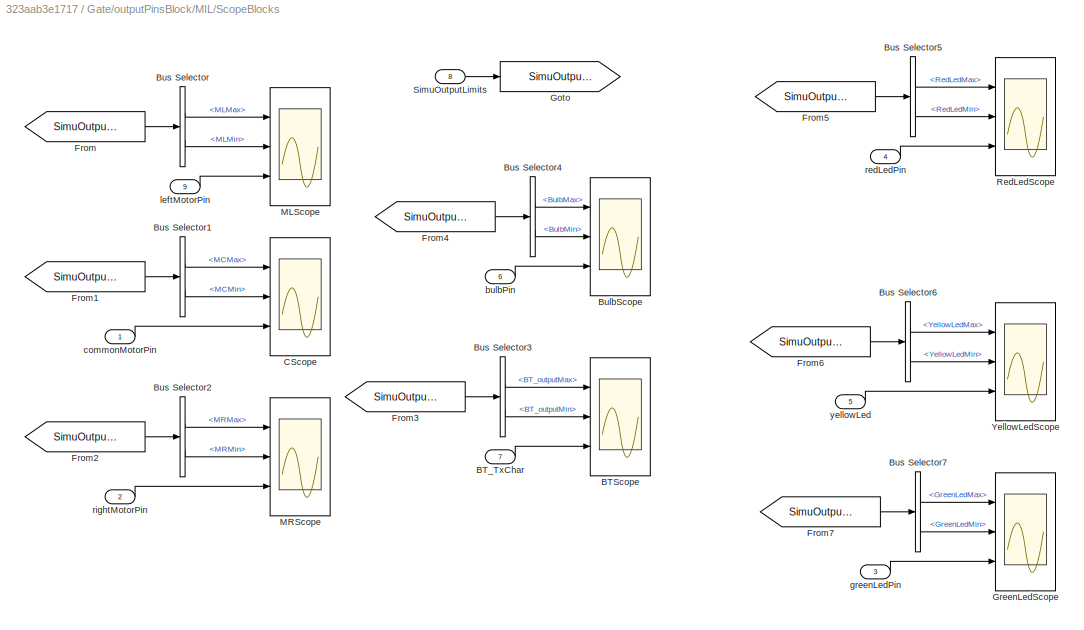
BLOCK [SubSystem] Gate/outputPinsBlock/MIL/ScopeBlocks
  Ports = [9]
  RequestExecContextInheritance = off
  Variant = off
  VariantControl = VisualOutputs
BLOCK [Scope] Gate/outputPinsBlock/MIL/ScopeBlocks/BTScope
  NumInputPorts = 3
  Ports = [3]
  ScopeSpecificationString = Simulink.scopes.TimeScopeBlockCfg('CurrentConfiguration', extmgr.ConfigurationSet(extmgr.Configuration('Core','General UI',true),extmgr.Configuration('Core','Source UI',true),extmgr.Configuration('Sources','WiredSimulink',true,'SampleTime','0.001'),extmgr.Configuration('Visuals','Time Domain',true,'SerializedDisplays',{struct('MinYLimReal','-12.5','MaxYLimReal','111.5','YLabelReal','','MinYLimMag'...<+1453ch>
BLOCK [Inport] Gate/outputPinsBlock/MIL/ScopeBlocks/BT_TxChar
  IconDisplay = Port number
  Port = 7
BLOCK [Scope] Gate/outputPinsBlock/MIL/ScopeBlocks/BulbScope
  NumInputPorts = 3
  Ports = [3]
  ScopeSpecificationString = Simulink.scopes.TimeScopeBlockCfg('CurrentConfiguration', extmgr.ConfigurationSet(extmgr.Configuration('Core','General UI',true),extmgr.Configuration('Core','Source UI',true),extmgr.Configuration('Sources','WiredSimulink',true,'SampleTime','0.001','DataLoggingVariableName','ScopeData2'),extmgr.Configuration('Visuals','Time Domain',true,'SerializedDisplays',{struct('MinYLimReal','-0.25','MaxYLimRea...<+1513ch>
BLOCK [BusSelector] Gate/outputPinsBlock/MIL/ScopeBlocks/Bus Selector
  OutputSignals = MLMax,MLMin
  Ports = [1, 2]
BLOCK [BusSelector] Gate/outputPinsBlock/MIL/ScopeBlocks/Bus Selector1
  OutputSignals = MCMax,MCMin
  Ports = [1, 2]
BLOCK [BusSelector] Gate/outputPinsBlock/MIL/ScopeBlocks/Bus Selector2
  OutputSignals = MRMax,MRMin
  Ports = [1, 2]
BLOCK [BusSelector] Gate/outputPinsBlock/MIL/ScopeBlocks/Bus Selector3
  OutputSignals = BT_outputMax,BT_outputMin
  Ports = [1, 2]
BLOCK [BusSelector] Gate/outputPinsBlock/MIL/ScopeBlocks/Bus Selector4
  OutputSignals = BulbMax,BulbMin
  Ports = [1, 2]
BLOCK [BusSelector] Gate/outputPinsBlock/MIL/ScopeBlocks/Bus Selector5
  OutputSignals = RedLedMax,RedLedMin
  Ports = [1, 2]
BLOCK [BusSelector] Gate/outputPinsBlock/MIL/ScopeBlocks/Bus Selector6
  OutputSignals = YellowLedMax,YellowLedMin
  Ports = [1, 2]
BLOCK [BusSelector] Gate/outputPinsBlock/MIL/ScopeBlocks/Bus Selector7
  OutputSignals = GreenLedMax,GreenLedMin
  Ports = [1, 2]
BLOCK [Scope] Gate/outputPinsBlock/MIL/ScopeBlocks/CScope
  NumInputPorts = 3
  Ports = [3]
  ScopeSpecificationString = Simulink.scopes.TimeScopeBlockCfg('CurrentConfiguration', extmgr.ConfigurationSet(extmgr.Configuration('Core','General UI',true),extmgr.Configuration('Core','Source UI',true),extmgr.Configuration('Sources','WiredSimulink',true,'SampleTime','0.001','DataLoggingVariableName','ScopeData2'),extmgr.Configuration('Visuals','Time Domain',true,'SerializedDisplays',{struct('MinYLimReal','-0.25','MaxYLimRea...<+1528ch>
BLOCK [From] Gate/outputPinsBlock/MIL/ScopeBlocks/From
  GotoTag = SimuOutputLimits
BLOCK [From] Gate/outputPinsBlock/MIL/ScopeBlocks/From1
  GotoTag = SimuOutputLimits
BLOCK [From] Gate/outputPinsBlock/MIL/ScopeBlocks/From2
  GotoTag = SimuOutputLimits
BLOCK [From] Gate/outputPinsBlock/MIL/ScopeBlocks/From3
  GotoTag = SimuOutputLimits
BLOCK [From] Gate/outputPinsBlock/MIL/ScopeBlocks/From4
  GotoTag = SimuOutputLimits
BLOCK [From] Gate/outputPinsBlock/MIL/ScopeBlocks/From5
  GotoTag = SimuOutputLimits
BLOCK [From] Gate/outputPinsBlock/MIL/ScopeBlocks/From6
  GotoTag = SimuOutputLimits
BLOCK [From] Gate/outputPinsBlock/MIL/ScopeBlocks/From7
  GotoTag = SimuOutputLimits
BLOCK [Goto] Gate/outputPinsBlock/MIL/ScopeBlocks/Goto
  GotoTag = SimuOutputLimits
BLOCK [Scope] Gate/outputPinsBlock/MIL/ScopeBlocks/GreenLedScope
  NumInputPorts = 3
  Ports = [3]
  ScopeSpecificationString = Simulink.scopes.TimeScopeBlockCfg('CurrentConfiguration', extmgr.ConfigurationSet(extmgr.Configuration('Core','General UI',true),extmgr.Configuration('Core','Source UI',true),extmgr.Configuration('Sources','WiredSimulink',true,'SampleTime','0.001','DataLoggingVariableName','ScopeData1'),extmgr.Configuration('Visuals','Time Domain',true,'SerializedDisplays',{struct('MinYLimReal','-0.25','MaxYLimRea...<+1539ch>
BLOCK [Scope] Gate/outputPinsBlock/MIL/ScopeBlocks/MLScope
  NumInputPorts = 3
  Ports = [3]
  ScopeSpecificationString = Simulink.scopes.TimeScopeBlockCfg('CurrentConfiguration', extmgr.ConfigurationSet(extmgr.Configuration('Core','General UI',true),extmgr.Configuration('Core','Source UI',true),extmgr.Configuration('Sources','WiredSimulink',true,'SampleTime','0.001'),extmgr.Configuration('Visuals','Time Domain',true,'SerializedDisplays',{struct('MinYLimReal','-0.25','MaxYLimReal','1.25','YLabelReal','','MinYLimMag',...<+1486ch>
BLOCK [Scope] Gate/outputPinsBlock/MIL/ScopeBlocks/MRScope
  NumInputPorts = 3
  Ports = [3]
  ScopeSpecificationString = Simulink.scopes.TimeScopeBlockCfg('CurrentConfiguration', extmgr.ConfigurationSet(extmgr.Configuration('Core','General UI',true),extmgr.Configuration('Core','Source UI',true),extmgr.Configuration('Sources','WiredSimulink',true,'SampleTime','0.001','DataLoggingVariableName','ScopeData1'),extmgr.Configuration('Visuals','Time Domain',true,'SerializedDisplays',{struct('MinYLimReal','-0.25','MaxYLimRea...<+1553ch>
BLOCK [Scope] Gate/outputPinsBlock/MIL/ScopeBlocks/RedLedScope
  NumInputPorts = 3
  Ports = [3]
  ScopeSpecificationString = Simulink.scopes.TimeScopeBlockCfg('CurrentConfiguration', extmgr.ConfigurationSet(extmgr.Configuration('Core','General UI',true),extmgr.Configuration('Core','Source UI',true),extmgr.Configuration('Sources','WiredSimulink',true,'SampleTime','0.001','DataLoggingVariableName','ScopeData3'),extmgr.Configuration('Visuals','Time Domain',true,'SerializedDisplays',{struct('MinYLimReal','-0.25','MaxYLimRea...<+1530ch>
BLOCK [Inport] Gate/outputPinsBlock/MIL/ScopeBlocks/SimuOutputLimits
  IconDisplay = Port number
  Port = 8
BLOCK [Scope] Gate/outputPinsBlock/MIL/ScopeBlocks/YellowLedScope
  NumInputPorts = 3
  Ports = [3]
  ScopeSpecificationString = Simulink.scopes.TimeScopeBlockCfg('CurrentConfiguration', extmgr.ConfigurationSet(extmgr.Configuration('Core','General UI',true),extmgr.Configuration('Core','Source UI',true),extmgr.Configuration('Sources','WiredSimulink',true,'SampleTime','0.001'),extmgr.Configuration('Visuals','Time Domain',true,'SerializedDisplays',{struct('MinYLimReal','-0.25','MaxYLimReal','1.25','YLabelReal','','MinYLimMag',...<+1495ch>
BLOCK [Inport] Gate/outputPinsBlock/MIL/ScopeBlocks/bulbPin
  IconDisplay = Port number
  Port = 6
BLOCK [Inport] Gate/outputPinsBlock/MIL/ScopeBlocks/commonMotorPin
  IconDisplay = Port number
BLOCK [Inport] Gate/outputPinsBlock/MIL/ScopeBlocks/greenLedPin
  IconDisplay = Port number
  Port = 3
BLOCK [Inport] Gate/outputPinsBlock/MIL/ScopeBlocks/leftMotorPin
  IconDisplay = Port number
  Port = 9
BLOCK [Inport] Gate/outputPinsBlock/MIL/ScopeBlocks/redLedPin
  IconDisplay = Port number
  Port = 4
BLOCK [Inport] Gate/outputPinsBlock/MIL/ScopeBlocks/rightMotorPin
  IconDisplay = Port number
  Port = 2
BLOCK [Inport] Gate/outputPinsBlock/MIL/ScopeBlocks/yellowLed
  IconDisplay = Port number
  Port = 5
BLOCK [Inport] Gate/outputPinsBlock/MIL/SimuOutputLimits
  IconDisplay = Port number
  Port = 9
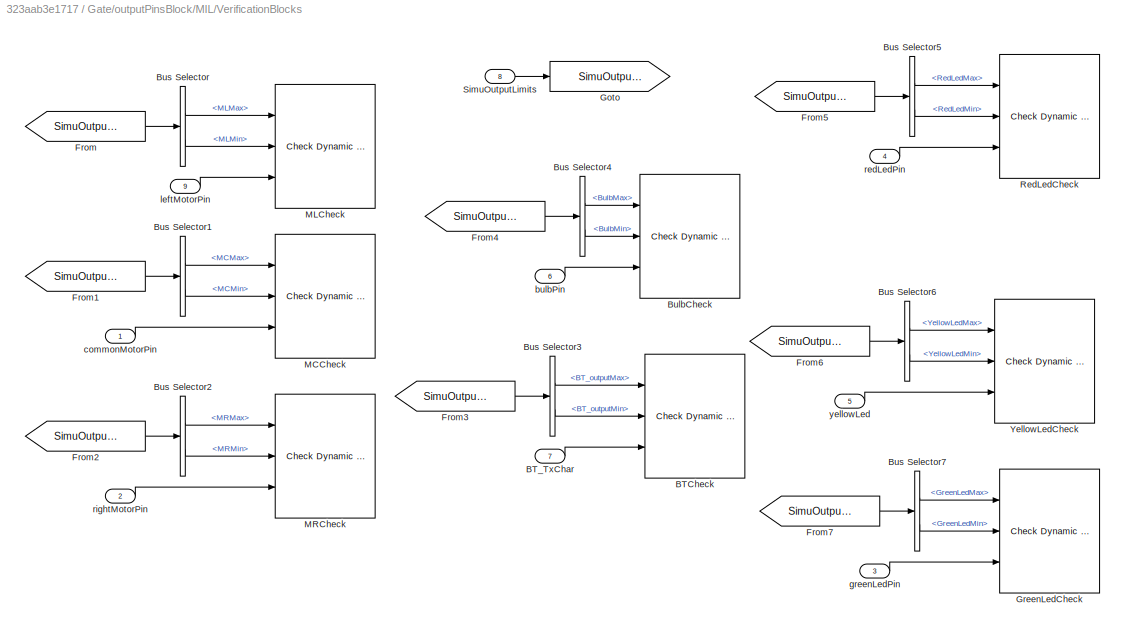
BLOCK [SubSystem] Gate/outputPinsBlock/MIL/VerificationBlocks 
  Ports = [9]
  RequestExecContextInheritance = off
  Variant = off
  VariantControl = VVOutputs
BLOCK [Reference] Gate/outputPinsBlock/MIL/VerificationBlocks /BTCheck  REF=simulink/Model
Verification/Check 
Dynamic Range
  Description = min < sig < max
  Ports = [3]
  SourceBlock = simulink/Model\nVerification/Check \nDynamic Range
  SourceType = Checks_DRange
BLOCK [Inport] Gate/outputPinsBlock/MIL/VerificationBlocks /BT_TxChar
  IconDisplay = Port number
  Port = 7
BLOCK [Reference] Gate/outputPinsBlock/MIL/VerificationBlocks /BulbCheck  REF=simulink/Model
Verification/Check 
Dynamic Range
  Description = min < sig < max
  Ports = [3]
  SourceBlock = simulink/Model\nVerification/Check \nDynamic Range
  SourceType = Checks_DRange
BLOCK [BusSelector] Gate/outputPinsBlock/MIL/VerificationBlocks /Bus Selector
  OutputSignals = MLMax,MLMin
  Ports = [1, 2]
BLOCK [BusSelector] Gate/outputPinsBlock/MIL/VerificationBlocks /Bus Selector1
  OutputSignals = MCMax,MCMin
  Ports = [1, 2]
BLOCK [BusSelector] Gate/outputPinsBlock/MIL/VerificationBlocks /Bus Selector2
  OutputSignals = MRMax,MRMin
  Ports = [1, 2]
BLOCK [BusSelector] Gate/outputPinsBlock/MIL/VerificationBlocks /Bus Selector3
  OutputSignals = BT_outputMax,BT_outputMin
  Ports = [1, 2]
BLOCK [BusSelector] Gate/outputPinsBlock/MIL/VerificationBlocks /Bus Selector4
  OutputSignals = BulbMax,BulbMin
  Ports = [1, 2]
BLOCK [BusSelector] Gate/outputPinsBlock/MIL/VerificationBlocks /Bus Selector5
  OutputSignals = RedLedMax,RedLedMin
  Ports = [1, 2]
BLOCK [BusSelector] Gate/outputPinsBlock/MIL/VerificationBlocks /Bus Selector6
  OutputSignals = YellowLedMax,YellowLedMin
  Ports = [1, 2]
BLOCK [BusSelector] Gate/outputPinsBlock/MIL/VerificationBlocks /Bus Selector7
  OutputSignals = GreenLedMax,GreenLedMin
  Ports = [1, 2]
BLOCK [From] Gate/outputPinsBlock/MIL/VerificationBlocks /From
  GotoTag = SimuOutputLimits
BLOCK [From] Gate/outputPinsBlock/MIL/VerificationBlocks /From1
  GotoTag = SimuOutputLimits
BLOCK [From] Gate/outputPinsBlock/MIL/VerificationBlocks /From2
  GotoTag = SimuOutputLimits
BLOCK [From] Gate/outputPinsBlock/MIL/VerificationBlocks /From3
  GotoTag = SimuOutputLimits
BLOCK [From] Gate/outputPinsBlock/MIL/VerificationBlocks /From4
  GotoTag = SimuOutputLimits
BLOCK [From] Gate/outputPinsBlock/MIL/VerificationBlocks /From5
  GotoTag = SimuOutputLimits
BLOCK [From] Gate/outputPinsBlock/MIL/VerificationBlocks /From6
  GotoTag = SimuOutputLimits
BLOCK [From] Gate/outputPinsBlock/MIL/VerificationBlocks /From7
  GotoTag = SimuOutputLimits
BLOCK [Goto] Gate/outputPinsBlock/MIL/VerificationBlocks /Goto
  GotoTag = SimuOutputLimits
BLOCK [Reference] Gate/outputPinsBlock/MIL/VerificationBlocks /GreenLedCheck  REF=simulink/Model
Verification/Check 
Dynamic Range
  Description = min < sig < max
  Ports = [3]
  SourceBlock = simulink/Model\nVerification/Check \nDynamic Range
  SourceType = Checks_DRange
BLOCK [Reference] Gate/outputPinsBlock/MIL/VerificationBlocks /MCCheck  REF=simulink/Model
Verification/Check 
Dynamic Range
  Description = min < sig < max
  Ports = [3]
  SourceBlock = simulink/Model\nVerification/Check \nDynamic Range
  SourceType = Checks_DRange
BLOCK [Reference] Gate/outputPinsBlock/MIL/VerificationBlocks /MLCheck  REF=simulink/Model
Verification/Check 
Dynamic Range
  Description = min < sig < max
  Ports = [3]
  SourceBlock = simulink/Model\nVerification/Check \nDynamic Range
  SourceType = Checks_DRange
BLOCK [Reference] Gate/outputPinsBlock/MIL/VerificationBlocks /MRCheck  REF=simulink/Model
Verification/Check 
Dynamic Range
  Description = min < sig < max
  Ports = [3]
  SourceBlock = simulink/Model\nVerification/Check \nDynamic Range
  SourceType = Checks_DRange
BLOCK [Reference] Gate/outputPinsBlock/MIL/VerificationBlocks /RedLedCheck  REF=simulink/Model
Verification/Check 
Dynamic Range
  Description = min < sig < max
  Ports = [3]
  SourceBlock = simulink/Model\nVerification/Check \nDynamic Range
  SourceType = Checks_DRange
BLOCK [Inport] Gate/outputPinsBlock/MIL/VerificationBlocks /SimuOutputLimits
  IconDisplay = Port number
  Port = 8
BLOCK [Reference] Gate/outputPinsBlock/MIL/VerificationBlocks /YellowLedCheck  REF=simulink/Model
Verification/Check 
Dynamic Range
  Description = min < sig < max
  Ports = [3]
  SourceBlock = simulink/Model\nVerification/Check \nDynamic Range
  SourceType = Checks_DRange
BLOCK [Inport] Gate/outputPinsBlock/MIL/VerificationBlocks /bulbPin
  IconDisplay = Port number
  Port = 6
BLOCK [Inport] Gate/outputPinsBlock/MIL/VerificationBlocks /commonMotorPin
  IconDisplay = Port number
BLOCK [Inport] Gate/outputPinsBlock/MIL/VerificationBlocks /greenLedPin
  IconDisplay = Port number
  Port = 3
BLOCK [Inport] Gate/outputPinsBlock/MIL/VerificationBlocks /leftMotorPin
  IconDisplay = Port number
  Port = 9
BLOCK [Inport] Gate/outputPinsBlock/MIL/VerificationBlocks /redLedPin
  IconDisplay = Port number
  Port = 4
BLOCK [Inport] Gate/outputPinsBlock/MIL/VerificationBlocks /rightMotorPin
  IconDisplay = Port number
  Port = 2
BLOCK [Inport] Gate/outputPinsBlock/MIL/VerificationBlocks /yellowLed
  IconDisplay = Port number
  Port = 5
BLOCK [Inport] Gate/outputPinsBlock/MIL/bulbPin
  IconDisplay = Port number
  Port = 7
BLOCK [Inport] Gate/outputPinsBlock/MIL/commonMotorPin 
  IconDisplay = Port number
  Port = 2
BLOCK [Inport] Gate/outputPinsBlock/MIL/greenLedPin
  IconDisplay = Port number
  Port = 4
BLOCK [Inport] Gate/outputPinsBlock/MIL/leftMotorPin 
  IconDisplay = Port number
BLOCK [Inport] Gate/outputPinsBlock/MIL/redLedPin
  IconDisplay = Port number
  Port = 5
BLOCK [Inport] Gate/outputPinsBlock/MIL/rightMotorPin 
  IconDisplay = Port number
  Port = 3
BLOCK [Inport] Gate/outputPinsBlock/MIL/yellowLed
  IconDisplay = Port number
  Port = 6
BLOCK [Inport] Gate/outputPinsBlock/SimuOutputLimits
  IconDisplay = Port number
  Port = 9
BLOCK [Inport] Gate/outputPinsBlock/bulbPin
  IconDisplay = Port number
  Port = 7
BLOCK [Inport] Gate/outputPinsBlock/commonMotorPin
  IconDisplay = Port number
  Port = 5
BLOCK [Inport] Gate/outputPinsBlock/greenLedPin
  IconDisplay = Port number
BLOCK [Inport] Gate/outputPinsBlock/leftMotorPin
  IconDisplay = Port number
  Port = 4
BLOCK [Inport] Gate/outputPinsBlock/redLedPin
  IconDisplay = Port number
  Port = 2
BLOCK [Inport] Gate/outputPinsBlock/rightMotorPin
  IconDisplay = Port number
  Port = 6
BLOCK [Inport] Gate/outputPinsBlock/yellowLed
  IconDisplay = Port number
  Port = 3
LINE Gate/Data Type Conversion11:1 -> Gate/GATE:7
LINE Gate/Data Type Conversion1:1 -> Gate/GATE:1
LINE Gate/Data Type Conversion2:1 -> Gate/GATE:8
LINE Gate/Data Type Conversion3:1 -> Gate/GATE:5
LINE Gate/Data Type Conversion4:1 -> Gate/GATE:3
LINE Gate/Data Type Conversion5:1 -> Gate/GATE:4
LINE Gate/Data Type Conversion6:1 -> Gate/GATE:6
LINE Gate/Data Type Conversion:1 -> Gate/GATE:2
LINE Gate/From1:1 -> Gate/HardwareInputWrapper:1
LINE Gate/From:1 -> Gate/HardwareInputWrapper:2
LINE Gate/GATE:1 -> Gate/outputPinsBlock:1
LINE Gate/GATE:10 -> Gate/Goto1:1
LINE Gate/GATE:2 -> Gate/outputPinsBlock:2
LINE Gate/GATE:3 -> Gate/outputPinsBlock:3
LINE Gate/GATE:4 -> Gate/outputPinsBlock:4
LINE Gate/GATE:5 -> Gate/outputPinsBlock:5
LINE Gate/GATE:6 -> Gate/outputPinsBlock:6
LINE Gate/GATE:7 -> Gate/outputPinsBlock:7
LINE Gate/GATE:8 -> Gate/outputPinsBlock:8
LINE Gate/GATE:9 -> Gate/Goto:1
LINE Gate/HardwareInputWrapper/HIL/Analog Input1:1 -> Gate/HardwareInputWrapper/HIL/leftCurrentRaw:1
LINE Gate/HardwareInputWrapper/HIL/Analog Input:1 -> Gate/HardwareInputWrapper/HIL/rightCurrentRaw:1
NET Gate/HardwareInputWrapper/HIL/BluetoothWrapper/S-Function Builder:1 -> Gate/HardwareInputWrapper/HIL/BluetoothWrapper/S-Function Builder1:1, Gate/HardwareInputWrapper/HIL/BluetoothWrapper/Unit Delay:1, Gate/HardwareInputWrapper/HIL/BluetoothWrapper/bluetoothCharPressed:1
LINE Gate/HardwareInputWrapper/HIL/BluetoothWrapper:1 -> Gate/HardwareInputWrapper/HIL/BtCharReceived:1
LINE Gate/HardwareInputWrapper/HIL/ButtonsPressed/S-Function Builder1:1 -> Gate/HardwareInputWrapper/HIL/ButtonsPressed/RFPressed:1
LINE Gate/HardwareInputWrapper/HIL/ButtonsPressed/S-Function Builder1:2 -> Gate/HardwareInputWrapper/HIL/ButtonsPressed/SWPressed:1
LINE Gate/HardwareInputWrapper/HIL/ButtonsPressed:1 -> Gate/HardwareInputWrapper/HIL/RFPressedOut:1
NET Gate/HardwareInputWrapper/HIL/ButtonsPressed:2 -> Gate/HardwareInputWrapper/HIL/Goto1:1, Gate/HardwareInputWrapper/HIL/PassSwPressedOut:1
LINE Gate/HardwareInputWrapper/HIL/EEPROM/EEPROM_Control:1 -> Gate/HardwareInputWrapper/HIL/EEPROM/EEPROM_UPDATE:1
LINE Gate/HardwareInputWrapper/HIL/EEPROM/EEPROM_Control:2 -> Gate/HardwareInputWrapper/HIL/EEPROM/EEPROM_UPDATE:2
LINE Gate/HardwareInputWrapper/HIL/EEPROM/EEPROM_Control:3 -> Gate/HardwareInputWrapper/HIL/EEPROM/EEPROM_UPDATE:3
LINE Gate/HardwareInputWrapper/HIL/EEPROM/EEPROM_UPDATE/S-Function Builder:1 -> Gate/HardwareInputWrapper/HIL/EEPROM/EEPROM_UPDATE/passwordOut:1
LINE Gate/HardwareInputWrapper/HIL/EEPROM/EEPROM_UPDATE/S-Function Builder:2 -> Gate/HardwareInputWrapper/HIL/EEPROM/EEPROM_UPDATE/readComplete:1
LINE Gate/HardwareInputWrapper/HIL/EEPROM/EEPROM_UPDATE/S-Function Builder:3 -> Gate/HardwareInputWrapper/HIL/EEPROM/EEPROM_UPDATE/writeComplete:1
LINE Gate/HardwareInputWrapper/HIL/EEPROM/EEPROM_UPDATE/S-Function Builder:4 -> Gate/HardwareInputWrapper/HIL/EEPROM/EEPROM_UPDATE/clearComplete:1
LINE Gate/HardwareInputWrapper/HIL/EEPROM/EEPROM_UPDATE/S-Function Builder:5 -> Gate/HardwareInputWrapper/HIL/EEPROM/EEPROM_UPDATE/passAssignedOut:1
LINE Gate/HardwareInputWrapper/HIL/EEPROM/EEPROM_UPDATE/Unit Delay1:1 -> Gate/HardwareInputWrapper/HIL/EEPROM/EEPROM_UPDATE/S-Function Builder:5
LINE Gate/HardwareInputWrapper/HIL/EEPROM/EEPROM_UPDATE/Unit Delay2:1 -> Gate/HardwareInputWrapper/HIL/EEPROM/EEPROM_UPDATE/S-Function Builder:7
LINE Gate/HardwareInputWrapper/HIL/EEPROM/EEPROM_UPDATE/Unit Delay:1 -> Gate/HardwareInputWrapper/HIL/EEPROM/EEPROM_UPDATE/S-Function Builder:3
NET Gate/HardwareInputWrapper/HIL/EEPROM/EEPROM_UPDATE/clearReq:1 -> Gate/HardwareInputWrapper/HIL/EEPROM/EEPROM_UPDATE/S-Function Builder:4, Gate/HardwareInputWrapper/HIL/EEPROM/EEPROM_UPDATE/Unit Delay1:1
LINE Gate/HardwareInputWrapper/HIL/EEPROM/EEPROM_UPDATE/passAssignedIn:1 -> Gate/HardwareInputWrapper/HIL/EEPROM/EEPROM_UPDATE/S-Function Builder:8
LINE Gate/HardwareInputWrapper/HIL/EEPROM/EEPROM_UPDATE/passwordIn:1 -> Gate/HardwareInputWrapper/HIL/EEPROM/EEPROM_UPDATE/S-Function Builder:1
NET Gate/HardwareInputWrapper/HIL/EEPROM/EEPROM_UPDATE/readReq:1 -> Gate/HardwareInputWrapper/HIL/EEPROM/EEPROM_UPDATE/S-Function Builder:2, Gate/HardwareInputWrapper/HIL/EEPROM/EEPROM_UPDATE/Unit Delay:1
NET Gate/HardwareInputWrapper/HIL/EEPROM/EEPROM_UPDATE/writeReq:1 -> Gate/HardwareInputWrapper/HIL/EEPROM/EEPROM_UPDATE/S-Function Builder:6, Gate/HardwareInputWrapper/HIL/EEPROM/EEPROM_UPDATE/Unit Delay2:1
LINE Gate/HardwareInputWrapper/HIL/EEPROM/EEPROM_UPDATE:1 -> Gate/HardwareInputWrapper/HIL/EEPROM/Goto1:1
LINE Gate/HardwareInputWrapper/HIL/EEPROM/EEPROM_UPDATE:2 -> Gate/HardwareInputWrapper/HIL/EEPROM/Goto2:1
LINE Gate/HardwareInputWrapper/HIL/EEPROM/EEPROM_UPDATE:3 -> Gate/HardwareInputWrapper/HIL/EEPROM/Terminator:1
LINE Gate/HardwareInputWrapper/HIL/EEPROM/EEPROM_UPDATE:4 -> Gate/HardwareInputWrapper/HIL/EEPROM/passwordOut:1
LINE Gate/HardwareInputWrapper/HIL/EEPROM/EEPROM_UPDATE:5 -> Gate/HardwareInputWrapper/HIL/EEPROM/passAssignedOut:1
LINE Gate/HardwareInputWrapper/HIL/EEPROM/From1:1 -> Gate/HardwareInputWrapper/HIL/EEPROM/EEPROM_UPDATE:5
LINE Gate/HardwareInputWrapper/HIL/EEPROM/From2:1 -> Gate/HardwareInputWrapper/HIL/EEPROM/Unit Delay:1
LINE Gate/HardwareInputWrapper/HIL/EEPROM/From3:1 -> Gate/HardwareInputWrapper/HIL/EEPROM/Unit Delay1:1
LINE Gate/HardwareInputWrapper/HIL/EEPROM/From:1 -> Gate/HardwareInputWrapper/HIL/EEPROM/EEPROM_Control:2
LINE Gate/HardwareInputWrapper/HIL/EEPROM/Unit Delay1:1 -> Gate/HardwareInputWrapper/HIL/EEPROM/EEPROM_Control:4
LINE Gate/HardwareInputWrapper/HIL/EEPROM/Unit Delay:1 -> Gate/HardwareInputWrapper/HIL/EEPROM/EEPROM_Control:3
LINE Gate/HardwareInputWrapper/HIL/EEPROM/passAssigned:1 -> Gate/HardwareInputWrapper/HIL/EEPROM/Goto:1
LINE Gate/HardwareInputWrapper/HIL/EEPROM/passSw:1 -> Gate/HardwareInputWrapper/HIL/EEPROM/EEPROM_Control:1
LINE Gate/HardwareInputWrapper/HIL/EEPROM/passwordIn:1 -> Gate/HardwareInputWrapper/HIL/EEPROM/EEPROM_UPDATE:4
LINE Gate/HardwareInputWrapper/HIL/EEPROM:1 -> Gate/HardwareInputWrapper/HIL/passwordOut:1
LINE Gate/HardwareInputWrapper/HIL/EEPROM:2 -> Gate/HardwareInputWrapper/HIL/passAssignedOut:1
LINE Gate/HardwareInputWrapper/HIL/From:1 -> Gate/HardwareInputWrapper/HIL/EEPROM:1
LINE Gate/HardwareInputWrapper/HIL/KeypadWrapper/KeypadLib:1 -> Gate/HardwareInputWrapper/HIL/KeypadWrapper/charPressed:1
NET Gate/HardwareInputWrapper/HIL/KeypadWrapper:1 -> Gate/HardwareInputWrapper/HIL/KpCharPressed:1, Gate/HardwareInputWrapper/HIL/S-Function Builder2:1
LINE Gate/HardwareInputWrapper/HIL/currentSensorWrapperOld/Add:1 -> Gate/HardwareInputWrapper/HIL/currentSensorWrapperOld/Slider Gain:1
LINE Gate/HardwareInputWrapper/HIL/currentSensorWrapperOld/Constant1:1 -> Gate/HardwareInputWrapper/HIL/currentSensorWrapperOld/Switch:3
LINE Gate/HardwareInputWrapper/HIL/currentSensorWrapperOld/Constant:1 -> Gate/HardwareInputWrapper/HIL/currentSensorWrapperOld/Switch:1
LINE Gate/HardwareInputWrapper/HIL/currentSensorWrapperOld/CurrentAnalogIn:1 -> Gate/HardwareInputWrapper/HIL/currentSensorWrapperOld/SquareWaveDetector:1
LINE Gate/HardwareInputWrapper/HIL/currentSensorWrapperOld/Divide:1 -> Gate/HardwareInputWrapper/HIL/currentSensorWrapperOld/Product:1
LINE Gate/HardwareInputWrapper/HIL/currentSensorWrapperOld/MaxAnalog1:1 -> Gate/HardwareInputWrapper/HIL/currentSensorWrapperOld/Add:1
LINE Gate/HardwareInputWrapper/HIL/currentSensorWrapperOld/MaxAnalog2:1 -> Gate/HardwareInputWrapper/HIL/currentSensorWrapperOld/Relational Operator:2
LINE Gate/HardwareInputWrapper/HIL/currentSensorWrapperOld/MaxAnalog:1 -> Gate/HardwareInputWrapper/HIL/currentSensorWrapperOld/Divide:2
LINE Gate/HardwareInputWrapper/HIL/currentSensorWrapperOld/MaxVoltage:1 -> Gate/HardwareInputWrapper/HIL/currentSensorWrapperOld/Product:2
LINE Gate/HardwareInputWrapper/HIL/currentSensorWrapperOld/Product:1 -> Gate/HardwareInputWrapper/HIL/currentSensorWrapperOld/Subtract:1
LINE Gate/HardwareInputWrapper/HIL/currentSensorWrapperOld/Relational Operator:1 -> Gate/HardwareInputWrapper/HIL/currentSensorWrapperOld/Switch:2
LINE Gate/HardwareInputWrapper/HIL/currentSensorWrapperOld/Slider Gain:1 -> Gate/HardwareInputWrapper/HIL/currentSensorWrapperOld/Divide:1
LINE Gate/HardwareInputWrapper/HIL/currentSensorWrapperOld/SquareWaveDetector:1 -> Gate/HardwareInputWrapper/HIL/currentSensorWrapperOld/current:1
LINE Gate/HardwareInputWrapper/HIL/currentSensorWrapperOld/Subtract:1 -> Gate/HardwareInputWrapper/HIL/currentSensorWrapperOld/Divide1:1
LINE Gate/HardwareInputWrapper/HIL/currentSensorWrapperOld/constantInCurrentEqua1:1 -> Gate/HardwareInputWrapper/HIL/currentSensorWrapperOld/Divide1:2
LINE Gate/HardwareInputWrapper/HIL/currentSensorWrapperOld/constantInCurrentEqua:1 -> Gate/HardwareInputWrapper/HIL/currentSensorWrapperOld/Subtract:2
LINE Gate/HardwareInputWrapper/HIL/passAssigned:1 -> Gate/HardwareInputWrapper/HIL/EEPROM:2
LINE Gate/HardwareInputWrapper/HIL/passwordIn:1 -> Gate/HardwareInputWrapper/HIL/EEPROM:3
LINE Gate/HardwareInputWrapper/MIL_Gate_A/Bus Creator:1 -> Gate/HardwareInputWrapper/MIL_Gate_A/SimuOutputLimits:1
LINE Gate/HardwareInputWrapper/MIL_Gate_A/Mux:1 -> Gate/HardwareInputWrapper/MIL_Gate_A/passwordOut:1
LINE Gate/HardwareInputWrapper/MIL_Gate_A/Quantizer1:1 -> Gate/HardwareInputWrapper/MIL_Gate_A/BtCharReceived:1
LINE Gate/HardwareInputWrapper/MIL_Gate_A/Quantizer2:1 -> Gate/HardwareInputWrapper/MIL_Gate_A/RFPressedOut:1
LINE Gate/HardwareInputWrapper/MIL_Gate_A/Quantizer3:1 -> Gate/HardwareInputWrapper/MIL_Gate_A/PassSwPressedOut:1
LINE Gate/HardwareInputWrapper/MIL_Gate_A/Quantizer:1 -> Gate/HardwareInputWrapper/MIL_Gate_A/KpCharPressed:1
LINE Gate/HardwareInputWrapper/MIL_Gate_A/Signal Builder:1 -> Gate/HardwareInputWrapper/MIL_Gate_A/Quantizer:1
LINE Gate/HardwareInputWrapper/MIL_Gate_A/Signal Builder:10 -> Gate/HardwareInputWrapper/MIL_Gate_A/Bus Creator:4
LINE Gate/HardwareInputWrapper/MIL_Gate_A/Signal Builder:11 -> Gate/HardwareInputWrapper/MIL_Gate_A/Bus Creator:5
LINE Gate/HardwareInputWrapper/MIL_Gate_A/Signal Builder:12 -> Gate/HardwareInputWrapper/MIL_Gate_A/Bus Creator:6
LINE Gate/HardwareInputWrapper/MIL_Gate_A/Signal Builder:13 -> Gate/HardwareInputWrapper/MIL_Gate_A/Bus Creator:7
LINE Gate/HardwareInputWrapper/MIL_Gate_A/Signal Builder:14 -> Gate/HardwareInputWrapper/MIL_Gate_A/Bus Creator:8
LINE Gate/HardwareInputWrapper/MIL_Gate_A/Signal Builder:15 -> Gate/HardwareInputWrapper/MIL_Gate_A/Bus Creator:9
LINE Gate/HardwareInputWrapper/MIL_Gate_A/Signal Builder:16 -> Gate/HardwareInputWrapper/MIL_Gate_A/Bus Creator:10
LINE Gate/HardwareInputWrapper/MIL_Gate_A/Signal Builder:17 -> Gate/HardwareInputWrapper/MIL_Gate_A/Bus Creator:11
LINE Gate/HardwareInputWrapper/MIL_Gate_A/Signal Builder:18 -> Gate/HardwareInputWrapper/MIL_Gate_A/Bus Creator:12
LINE Gate/HardwareInputWrapper/MIL_Gate_A/Signal Builder:19 -> Gate/HardwareInputWrapper/MIL_Gate_A/Bus Creator:13
LINE Gate/HardwareInputWrapper/MIL_Gate_A/Signal Builder:2 -> Gate/HardwareInputWrapper/MIL_Gate_A/Quantizer1:1
LINE Gate/HardwareInputWrapper/MIL_Gate_A/Signal Builder:20 -> Gate/HardwareInputWrapper/MIL_Gate_A/Bus Creator:14
LINE Gate/HardwareInputWrapper/MIL_Gate_A/Signal Builder:21 -> Gate/HardwareInputWrapper/MIL_Gate_A/Bus Creator:15
LINE Gate/HardwareInputWrapper/MIL_Gate_A/Signal Builder:22 -> Gate/HardwareInputWrapper/MIL_Gate_A/Bus Creator:16
LINE Gate/HardwareInputWrapper/MIL_Gate_A/Signal Builder:23 -> Gate/HardwareInputWrapper/MIL_Gate_A/passAssignedOut:1
LINE Gate/HardwareInputWrapper/MIL_Gate_A/Signal Builder:24 -> Gate/HardwareInputWrapper/MIL_Gate_A/Mux:1
LINE Gate/HardwareInputWrapper/MIL_Gate_A/Signal Builder:25 -> Gate/HardwareInputWrapper/MIL_Gate_A/Mux:2
LINE Gate/HardwareInputWrapper/MIL_Gate_A/Signal Builder:26 -> Gate/HardwareInputWrapper/MIL_Gate_A/Mux:3
LINE Gate/HardwareInputWrapper/MIL_Gate_A/Signal Builder:27 -> Gate/HardwareInputWrapper/MIL_Gate_A/Mux:4
LINE Gate/HardwareInputWrapper/MIL_Gate_A/Signal Builder:28 -> Gate/HardwareInputWrapper/MIL_Gate_A/Mux:5
LINE Gate/HardwareInputWrapper/MIL_Gate_A/Signal Builder:29 -> Gate/HardwareInputWrapper/MIL_Gate_A/Mux:6
LINE Gate/HardwareInputWrapper/MIL_Gate_A/Signal Builder:3 -> Gate/HardwareInputWrapper/MIL_Gate_A/Quantizer2:1
LINE Gate/HardwareInputWrapper/MIL_Gate_A/Signal Builder:4 -> Gate/HardwareInputWrapper/MIL_Gate_A/Quantizer3:1
LINE Gate/HardwareInputWrapper/MIL_Gate_A/Signal Builder:5 -> Gate/HardwareInputWrapper/MIL_Gate_A/rightCurrentRaw:1
LINE Gate/HardwareInputWrapper/MIL_Gate_A/Signal Builder:6 -> Gate/HardwareInputWrapper/MIL_Gate_A/leftCurrentRaw:1
LINE Gate/HardwareInputWrapper/MIL_Gate_A/Signal Builder:7 -> Gate/HardwareInputWrapper/MIL_Gate_A/Bus Creator:1
LINE Gate/HardwareInputWrapper/MIL_Gate_A/Signal Builder:8 -> Gate/HardwareInputWrapper/MIL_Gate_A/Bus Creator:2
LINE Gate/HardwareInputWrapper/MIL_Gate_A/Signal Builder:9 -> Gate/HardwareInputWrapper/MIL_Gate_A/Bus Creator:3
LINE Gate/HardwareInputWrapper/MIL_Gate_B/Bus Creator:1 -> Gate/HardwareInputWrapper/MIL_Gate_B/SimuOutputLimits:1
LINE Gate/HardwareInputWrapper/MIL_Gate_B/Constant1:1 -> Gate/HardwareInputWrapper/MIL_Gate_B/Bus Creator:16
LINE Gate/HardwareInputWrapper/MIL_Gate_B/Constant2:1 -> Gate/HardwareInputWrapper/MIL_Gate_B/BtCharReceived:1
LINE Gate/HardwareInputWrapper/MIL_Gate_B/Constant:1 -> Gate/HardwareInputWrapper/MIL_Gate_B/Bus Creator:15
LINE Gate/HardwareInputWrapper/MIL_Gate_B/Mux:1 -> Gate/HardwareInputWrapper/MIL_Gate_B/passwordOut:1
LINE Gate/HardwareInputWrapper/MIL_Gate_B/Signal Builder:1 -> Gate/HardwareInputWrapper/MIL_Gate_B/KpCharPressed:1
LINE Gate/HardwareInputWrapper/MIL_Gate_B/Signal Builder:10 -> Gate/HardwareInputWrapper/MIL_Gate_B/Bus Creator:5
LINE Gate/HardwareInputWrapper/MIL_Gate_B/Signal Builder:11 -> Gate/HardwareInputWrapper/MIL_Gate_B/Bus Creator:6
LINE Gate/HardwareInputWrapper/MIL_Gate_B/Signal Builder:12 -> Gate/HardwareInputWrapper/MIL_Gate_B/Bus Creator:7
LINE Gate/HardwareInputWrapper/MIL_Gate_B/Signal Builder:13 -> Gate/HardwareInputWrapper/MIL_Gate_B/Bus Creator:8
LINE Gate/HardwareInputWrapper/MIL_Gate_B/Signal Builder:14 -> Gate/HardwareInputWrapper/MIL_Gate_B/Bus Creator:9
LINE Gate/HardwareInputWrapper/MIL_Gate_B/Signal Builder:15 -> Gate/HardwareInputWrapper/MIL_Gate_B/Bus Creator:10
LINE Gate/HardwareInputWrapper/MIL_Gate_B/Signal Builder:16 -> Gate/HardwareInputWrapper/MIL_Gate_B/Bus Creator:11
LINE Gate/HardwareInputWrapper/MIL_Gate_B/Signal Builder:17 -> Gate/HardwareInputWrapper/MIL_Gate_B/Bus Creator:12
LINE Gate/HardwareInputWrapper/MIL_Gate_B/Signal Builder:18 -> Gate/HardwareInputWrapper/MIL_Gate_B/Bus Creator:13
LINE Gate/HardwareInputWrapper/MIL_Gate_B/Signal Builder:19 -> Gate/HardwareInputWrapper/MIL_Gate_B/Bus Creator:14
LINE Gate/HardwareInputWrapper/MIL_Gate_B/Signal Builder:2 -> Gate/HardwareInputWrapper/MIL_Gate_B/RFPressedOut:1
LINE Gate/HardwareInputWrapper/MIL_Gate_B/Signal Builder:20 -> Gate/HardwareInputWrapper/MIL_Gate_B/passAssignedOut:1
LINE Gate/HardwareInputWrapper/MIL_Gate_B/Signal Builder:21 -> Gate/HardwareInputWrapper/MIL_Gate_B/Mux:1
LINE Gate/HardwareInputWrapper/MIL_Gate_B/Signal Builder:22 -> Gate/HardwareInputWrapper/MIL_Gate_B/Mux:2
LINE Gate/HardwareInputWrapper/MIL_Gate_B/Signal Builder:23 -> Gate/HardwareInputWrapper/MIL_Gate_B/Mux:3
LINE Gate/HardwareInputWrapper/MIL_Gate_B/Signal Builder:24 -> Gate/HardwareInputWrapper/MIL_Gate_B/Mux:4
LINE Gate/HardwareInputWrapper/MIL_Gate_B/Signal Builder:25 -> Gate/HardwareInputWrapper/MIL_Gate_B/Mux:5
LINE Gate/HardwareInputWrapper/MIL_Gate_B/Signal Builder:26 -> Gate/HardwareInputWrapper/MIL_Gate_B/Mux:6
LINE Gate/HardwareInputWrapper/MIL_Gate_B/Signal Builder:3 -> Gate/HardwareInputWrapper/MIL_Gate_B/PassSwPressedOut:1
LINE Gate/HardwareInputWrapper/MIL_Gate_B/Signal Builder:4 -> Gate/HardwareInputWrapper/MIL_Gate_B/rightCurrentRaw:1
LINE Gate/HardwareInputWrapper/MIL_Gate_B/Signal Builder:5 -> Gate/HardwareInputWrapper/MIL_Gate_B/leftCurrentRaw:1
LINE Gate/HardwareInputWrapper/MIL_Gate_B/Signal Builder:6 -> Gate/HardwareInputWrapper/MIL_Gate_B/Bus Creator:1
LINE Gate/HardwareInputWrapper/MIL_Gate_B/Signal Builder:7 -> Gate/HardwareInputWrapper/MIL_Gate_B/Bus Creator:2
LINE Gate/HardwareInputWrapper/MIL_Gate_B/Signal Builder:8 -> Gate/HardwareInputWrapper/MIL_Gate_B/Bus Creator:3
LINE Gate/HardwareInputWrapper/MIL_Gate_B/Signal Builder:9 -> Gate/HardwareInputWrapper/MIL_Gate_B/Bus Creator:4
LINE Gate/HardwareInputWrapper/MIL_Gate_C/Bus Creator:1 -> Gate/HardwareInputWrapper/MIL_Gate_C/SimuOutputLimits:1
LINE Gate/HardwareInputWrapper/MIL_Gate_C/Constant1:1 -> Gate/HardwareInputWrapper/MIL_Gate_C/Bus Creator:8
LINE Gate/HardwareInputWrapper/MIL_Gate_C/Constant2:1 -> Gate/HardwareInputWrapper/MIL_Gate_C/Bus Creator:9
LINE Gate/HardwareInputWrapper/MIL_Gate_C/Constant3:1 -> Gate/HardwareInputWrapper/MIL_Gate_C/Bus Creator:10
LINE Gate/HardwareInputWrapper/MIL_Gate_C/Constant4:1 -> Gate/HardwareInputWrapper/MIL_Gate_C/Bus Creator:11
LINE Gate/HardwareInputWrapper/MIL_Gate_C/Constant5:1 -> Gate/HardwareInputWrapper/MIL_Gate_C/Bus Creator:12
LINE Gate/HardwareInputWrapper/MIL_Gate_C/Constant6:1 -> Gate/HardwareInputWrapper/MIL_Gate_C/Bus Creator:15
LINE Gate/HardwareInputWrapper/MIL_Gate_C/Constant7:1 -> Gate/HardwareInputWrapper/MIL_Gate_C/Bus Creator:16
LINE Gate/HardwareInputWrapper/MIL_Gate_C/Constant8:1 -> Gate/HardwareInputWrapper/MIL_Gate_C/KpCharPressed:1
LINE Gate/HardwareInputWrapper/MIL_Gate_C/Constant9:1 -> Gate/HardwareInputWrapper/MIL_Gate_C/BtCharReceived:1
LINE Gate/HardwareInputWrapper/MIL_Gate_C/Constant:1 -> Gate/HardwareInputWrapper/MIL_Gate_C/Bus Creator:7
LINE Gate/HardwareInputWrapper/MIL_Gate_C/Signal Builder:1 -> Gate/HardwareInputWrapper/MIL_Gate_C/RFPressedOut:1
LINE Gate/HardwareInputWrapper/MIL_Gate_C/Signal Builder:10 -> Gate/HardwareInputWrapper/MIL_Gate_C/Bus Creator:6
LINE Gate/HardwareInputWrapper/MIL_Gate_C/Signal Builder:11 -> Gate/HardwareInputWrapper/MIL_Gate_C/Bus Creator:13
LINE Gate/HardwareInputWrapper/MIL_Gate_C/Signal Builder:12 -> Gate/HardwareInputWrapper/MIL_Gate_C/Bus Creator:14
LINE Gate/HardwareInputWrapper/MIL_Gate_C/Signal Builder:2 -> Gate/HardwareInputWrapper/MIL_Gate_C/PassSwPressedOut:1
LINE Gate/HardwareInputWrapper/MIL_Gate_C/Signal Builder:3 -> Gate/HardwareInputWrapper/MIL_Gate_C/rightCurrentRaw:1
LINE Gate/HardwareInputWrapper/MIL_Gate_C/Signal Builder:4 -> Gate/HardwareInputWrapper/MIL_Gate_C/leftCurrentRaw:1
LINE Gate/HardwareInputWrapper/MIL_Gate_C/Signal Builder:5 -> Gate/HardwareInputWrapper/MIL_Gate_C/Bus Creator:1
LINE Gate/HardwareInputWrapper/MIL_Gate_C/Signal Builder:6 -> Gate/HardwareInputWrapper/MIL_Gate_C/Bus Creator:2
LINE Gate/HardwareInputWrapper/MIL_Gate_C/Signal Builder:7 -> Gate/HardwareInputWrapper/MIL_Gate_C/Bus Creator:3
LINE Gate/HardwareInputWrapper/MIL_Gate_C/Signal Builder:8 -> Gate/HardwareInputWrapper/MIL_Gate_C/Bus Creator:4
LINE Gate/HardwareInputWrapper/MIL_Gate_C/Signal Builder:9 -> Gate/HardwareInputWrapper/MIL_Gate_C/Bus Creator:5
LINE Gate/HardwareInputWrapper:1 -> Gate/Data Type Conversion1:1
LINE Gate/HardwareInputWrapper:2 -> Gate/Data Type Conversion:1
LINE Gate/HardwareInputWrapper:3 -> Gate/Data Type Conversion4:1
LINE Gate/HardwareInputWrapper:4 -> Gate/Data Type Conversion3:1
LINE Gate/HardwareInputWrapper:5 -> Gate/Data Type Conversion5:1
LINE Gate/HardwareInputWrapper:6 -> Gate/Data Type Conversion6:1
LINE Gate/HardwareInputWrapper:7 -> Gate/Data Type Conversion11:1
LINE Gate/HardwareInputWrapper:8 -> Gate/Data Type Conversion2:1
LINE Gate/HardwareInputWrapper:9 -> Gate/outputPinsBlock:9
LINE Gate/outputPinsBlock/HIL/bulbPin:1 -> Gate/outputPinsBlock/HIL/S-Function Builder1:1
LINE Gate/outputPinsBlock/HIL/commonMotorPin:1 -> Gate/outputPinsBlock/HIL/S-Function Builder3:1
LINE Gate/outputPinsBlock/HIL/greenLedPin:1 -> Gate/outputPinsBlock/HIL/Digital Output1:1
LINE Gate/outputPinsBlock/HIL/leftMotorPin:1 -> Gate/outputPinsBlock/HIL/S-Function Builder2:1
LINE Gate/outputPinsBlock/HIL/redLedPin:1 -> Gate/outputPinsBlock/HIL/Digital Output:1
LINE Gate/outputPinsBlock/HIL/rightMotorPin:1 -> Gate/outputPinsBlock/HIL/S-Function Builder4:1
LINE Gate/outputPinsBlock/HIL/yellowLed:1 -> Gate/outputPinsBlock/HIL/Digital Output2:1
LINE Gate/outputPinsBlock/MIL/ScopeBlocks/BT_TxChar:1 -> Gate/outputPinsBlock/MIL/ScopeBlocks/BTScope:3
LINE Gate/outputPinsBlock/MIL/ScopeBlocks/Bus Selector1:1 -> Gate/outputPinsBlock/MIL/ScopeBlocks/CScope:1
LINE Gate/outputPinsBlock/MIL/ScopeBlocks/Bus Selector1:2 -> Gate/outputPinsBlock/MIL/ScopeBlocks/CScope:2
LINE Gate/outputPinsBlock/MIL/ScopeBlocks/Bus Selector2:1 -> Gate/outputPinsBlock/MIL/ScopeBlocks/MRScope:1
LINE Gate/outputPinsBlock/MIL/ScopeBlocks/Bus Selector2:2 -> Gate/outputPinsBlock/MIL/ScopeBlocks/MRScope:2
LINE Gate/outputPinsBlock/MIL/ScopeBlocks/Bus Selector3:1 -> Gate/outputPinsBlock/MIL/ScopeBlocks/BTScope:1
LINE Gate/outputPinsBlock/MIL/ScopeBlocks/Bus Selector3:2 -> Gate/outputPinsBlock/MIL/ScopeBlocks/BTScope:2
LINE Gate/outputPinsBlock/MIL/ScopeBlocks/Bus Selector4:1 -> Gate/outputPinsBlock/MIL/ScopeBlocks/BulbScope:1
LINE Gate/outputPinsBlock/MIL/ScopeBlocks/Bus Selector4:2 -> Gate/outputPinsBlock/MIL/ScopeBlocks/BulbScope:2
LINE Gate/outputPinsBlock/MIL/ScopeBlocks/Bus Selector5:1 -> Gate/outputPinsBlock/MIL/ScopeBlocks/RedLedScope:1
LINE Gate/outputPinsBlock/MIL/ScopeBlocks/Bus Selector5:2 -> Gate/outputPinsBlock/MIL/ScopeBlocks/RedLedScope:2
LINE Gate/outputPinsBlock/MIL/ScopeBlocks/Bus Selector6:1 -> Gate/outputPinsBlock/MIL/ScopeBlocks/YellowLedScope:1
LINE Gate/outputPinsBlock/MIL/ScopeBlocks/Bus Selector6:2 -> Gate/outputPinsBlock/MIL/ScopeBlocks/YellowLedScope:2
LINE Gate/outputPinsBlock/MIL/ScopeBlocks/Bus Selector7:1 -> Gate/outputPinsBlock/MIL/ScopeBlocks/GreenLedScope:1
LINE Gate/outputPinsBlock/MIL/ScopeBlocks/Bus Selector7:2 -> Gate/outputPinsBlock/MIL/ScopeBlocks/GreenLedScope:2
LINE Gate/outputPinsBlock/MIL/ScopeBlocks/Bus Selector:1 -> Gate/outputPinsBlock/MIL/ScopeBlocks/MLScope:1
LINE Gate/outputPinsBlock/MIL/ScopeBlocks/Bus Selector:2 -> Gate/outputPinsBlock/MIL/ScopeBlocks/MLScope:2
LINE Gate/outputPinsBlock/MIL/ScopeBlocks/From1:1 -> Gate/outputPinsBlock/MIL/ScopeBlocks/Bus Selector1:1
LINE Gate/outputPinsBlock/MIL/ScopeBlocks/From2:1 -> Gate/outputPinsBlock/MIL/ScopeBlocks/Bus Selector2:1
LINE Gate/outputPinsBlock/MIL/ScopeBlocks/From3:1 -> Gate/outputPinsBlock/MIL/ScopeBlocks/Bus Selector3:1
LINE Gate/outputPinsBlock/MIL/ScopeBlocks/From4:1 -> Gate/outputPinsBlock/MIL/ScopeBlocks/Bus Selector4:1
LINE Gate/outputPinsBlock/MIL/ScopeBlocks/From5:1 -> Gate/outputPinsBlock/MIL/ScopeBlocks/Bus Selector5:1
LINE Gate/outputPinsBlock/MIL/ScopeBlocks/From6:1 -> Gate/outputPinsBlock/MIL/ScopeBlocks/Bus Selector6:1
LINE Gate/outputPinsBlock/MIL/ScopeBlocks/From7:1 -> Gate/outputPinsBlock/MIL/ScopeBlocks/Bus Selector7:1
LINE Gate/outputPinsBlock/MIL/ScopeBlocks/From:1 -> Gate/outputPinsBlock/MIL/ScopeBlocks/Bus Selector:1
LINE Gate/outputPinsBlock/MIL/ScopeBlocks/SimuOutputLimits:1 -> Gate/outputPinsBlock/MIL/ScopeBlocks/Goto:1
LINE Gate/outputPinsBlock/MIL/ScopeBlocks/bulbPin:1 -> Gate/outputPinsBlock/MIL/ScopeBlocks/BulbScope:3
LINE Gate/outputPinsBlock/MIL/ScopeBlocks/commonMotorPin:1 -> Gate/outputPinsBlock/MIL/ScopeBlocks/CScope:3
LINE Gate/outputPinsBlock/MIL/ScopeBlocks/greenLedPin:1 -> Gate/outputPinsBlock/MIL/ScopeBlocks/GreenLedScope:3
LINE Gate/outputPinsBlock/MIL/ScopeBlocks/leftMotorPin:1 -> Gate/outputPinsBlock/MIL/ScopeBlocks/MLScope:3
LINE Gate/outputPinsBlock/MIL/ScopeBlocks/redLedPin:1 -> Gate/outputPinsBlock/MIL/ScopeBlocks/RedLedScope:3
LINE Gate/outputPinsBlock/MIL/ScopeBlocks/rightMotorPin:1 -> Gate/outputPinsBlock/MIL/ScopeBlocks/MRScope:3
LINE Gate/outputPinsBlock/MIL/ScopeBlocks/yellowLed:1 -> Gate/outputPinsBlock/MIL/ScopeBlocks/YellowLedScope:3
LINE Gate/outputPinsBlock/MIL/VerificationBlocks /BT_TxChar:1 -> Gate/outputPinsBlock/MIL/VerificationBlocks /BTCheck:3
LINE Gate/outputPinsBlock/MIL/VerificationBlocks /Bus Selector1:1 -> Gate/outputPinsBlock/MIL/VerificationBlocks /MCCheck:1
LINE Gate/outputPinsBlock/MIL/VerificationBlocks /Bus Selector1:2 -> Gate/outputPinsBlock/MIL/VerificationBlocks /MCCheck:2
LINE Gate/outputPinsBlock/MIL/VerificationBlocks /Bus Selector2:1 -> Gate/outputPinsBlock/MIL/VerificationBlocks /MRCheck:1
LINE Gate/outputPinsBlock/MIL/VerificationBlocks /Bus Selector2:2 -> Gate/outputPinsBlock/MIL/VerificationBlocks /MRCheck:2
LINE Gate/outputPinsBlock/MIL/VerificationBlocks /Bus Selector3:1 -> Gate/outputPinsBlock/MIL/VerificationBlocks /BTCheck:1
LINE Gate/outputPinsBlock/MIL/VerificationBlocks /Bus Selector3:2 -> Gate/outputPinsBlock/MIL/VerificationBlocks /BTCheck:2
LINE Gate/outputPinsBlock/MIL/VerificationBlocks /Bus Selector4:1 -> Gate/outputPinsBlock/MIL/VerificationBlocks /BulbCheck:1
LINE Gate/outputPinsBlock/MIL/VerificationBlocks /Bus Selector4:2 -> Gate/outputPinsBlock/MIL/VerificationBlocks /BulbCheck:2
LINE Gate/outputPinsBlock/MIL/VerificationBlocks /Bus Selector5:1 -> Gate/outputPinsBlock/MIL/VerificationBlocks /RedLedCheck:1
LINE Gate/outputPinsBlock/MIL/VerificationBlocks /Bus Selector5:2 -> Gate/outputPinsBlock/MIL/VerificationBlocks /RedLedCheck:2
LINE Gate/outputPinsBlock/MIL/VerificationBlocks /Bus Selector6:1 -> Gate/outputPinsBlock/MIL/VerificationBlocks /YellowLedCheck:1
LINE Gate/outputPinsBlock/MIL/VerificationBlocks /Bus Selector6:2 -> Gate/outputPinsBlock/MIL/VerificationBlocks /YellowLedCheck:2
LINE Gate/outputPinsBlock/MIL/VerificationBlocks /Bus Selector7:1 -> Gate/outputPinsBlock/MIL/VerificationBlocks /GreenLedCheck:1
LINE Gate/outputPinsBlock/MIL/VerificationBlocks /Bus Selector7:2 -> Gate/outputPinsBlock/MIL/VerificationBlocks /GreenLedCheck:2
LINE Gate/outputPinsBlock/MIL/VerificationBlocks /Bus Selector:1 -> Gate/outputPinsBlock/MIL/VerificationBlocks /MLCheck:1
LINE Gate/outputPinsBlock/MIL/VerificationBlocks /Bus Selector:2 -> Gate/outputPinsBlock/MIL/VerificationBlocks /MLCheck:2
LINE Gate/outputPinsBlock/MIL/VerificationBlocks /From1:1 -> Gate/outputPinsBlock/MIL/VerificationBlocks /Bus Selector1:1
LINE Gate/outputPinsBlock/MIL/VerificationBlocks /From2:1 -> Gate/outputPinsBlock/MIL/VerificationBlocks /Bus Selector2:1
LINE Gate/outputPinsBlock/MIL/VerificationBlocks /From3:1 -> Gate/outputPinsBlock/MIL/VerificationBlocks /Bus Selector3:1
LINE Gate/outputPinsBlock/MIL/VerificationBlocks /From4:1 -> Gate/outputPinsBlock/MIL/VerificationBlocks /Bus Selector4:1
LINE Gate/outputPinsBlock/MIL/VerificationBlocks /From5:1 -> Gate/outputPinsBlock/MIL/VerificationBlocks /Bus Selector5:1
LINE Gate/outputPinsBlock/MIL/VerificationBlocks /From6:1 -> Gate/outputPinsBlock/MIL/VerificationBlocks /Bus Selector6:1
LINE Gate/outputPinsBlock/MIL/VerificationBlocks /From7:1 -> Gate/outputPinsBlock/MIL/VerificationBlocks /Bus Selector7:1
LINE Gate/outputPinsBlock/MIL/VerificationBlocks /From:1 -> Gate/outputPinsBlock/MIL/VerificationBlocks /Bus Selector:1
LINE Gate/outputPinsBlock/MIL/VerificationBlocks /SimuOutputLimits:1 -> Gate/outputPinsBlock/MIL/VerificationBlocks /Goto:1
LINE Gate/outputPinsBlock/MIL/VerificationBlocks /bulbPin:1 -> Gate/outputPinsBlock/MIL/VerificationBlocks /BulbCheck:3
LINE Gate/outputPinsBlock/MIL/VerificationBlocks /commonMotorPin:1 -> Gate/outputPinsBlock/MIL/VerificationBlocks /MCCheck:3
LINE Gate/outputPinsBlock/MIL/VerificationBlocks /greenLedPin:1 -> Gate/outputPinsBlock/MIL/VerificationBlocks /GreenLedCheck:3
LINE Gate/outputPinsBlock/MIL/VerificationBlocks /leftMotorPin:1 -> Gate/outputPinsBlock/MIL/VerificationBlocks /MLCheck:3
LINE Gate/outputPinsBlock/MIL/VerificationBlocks /redLedPin:1 -> Gate/outputPinsBlock/MIL/VerificationBlocks /RedLedCheck:3
LINE Gate/outputPinsBlock/MIL/VerificationBlocks /rightMotorPin:1 -> Gate/outputPinsBlock/MIL/VerificationBlocks /MRCheck:3
LINE Gate/outputPinsBlock/MIL/VerificationBlocks /yellowLed:1 -> Gate/outputPinsBlock/MIL/VerificationBlocks /YellowLedCheck:3
note: NET lines group one-source signal fan-out (src -> all destinations, sorted); 1:1 wires keep LINE
CHART Gate/HardwareInputWrapper/HIL/EEPROM/EEPROM_Control states=5 transitions=7
  STATE_LABEL 'Idle\n'
  STATE_LABEL 'sendData\nentry:\nreadReq = true;\n'
  STATE_LABEL 'Read\nentry:\nreadReq = false;\n'
  STATE_LABEL 'write\nentry:\nwriteReq = true;\n'
  STATE_LABEL 'clear\nentry:\nclearReq = true;\n'
CHART Gate/HardwareInputWrapper/HIL/currentSensorWrapperOld/SquareWaveDetector states=4 transitions=8
  STATE_LABEL 'Running\nentry:\ncounterHigh = 0;\ncounterLow= 0;\ncurrentValue = 1;'
  STATE_LABEL 'High'
  STATE_LABEL 'Low'
  STATE_LABEL '[CurrentAnalogIn > 1000]\n/counterHigh++;'
  STATE_LABEL '[CurrentAnalogIn < 1000]'
  STATE_LABEL '[CurrentAnalogIn > 1000]'
  STATE_LABEL '[CurrentAnalogIn < 1000]\n/counterLow++'
  STATE_LABEL 'High'
  STATE_LABEL 'Low'
  STATE_LABEL 'Stop\nentry:\ncurrentValue = 0;'
